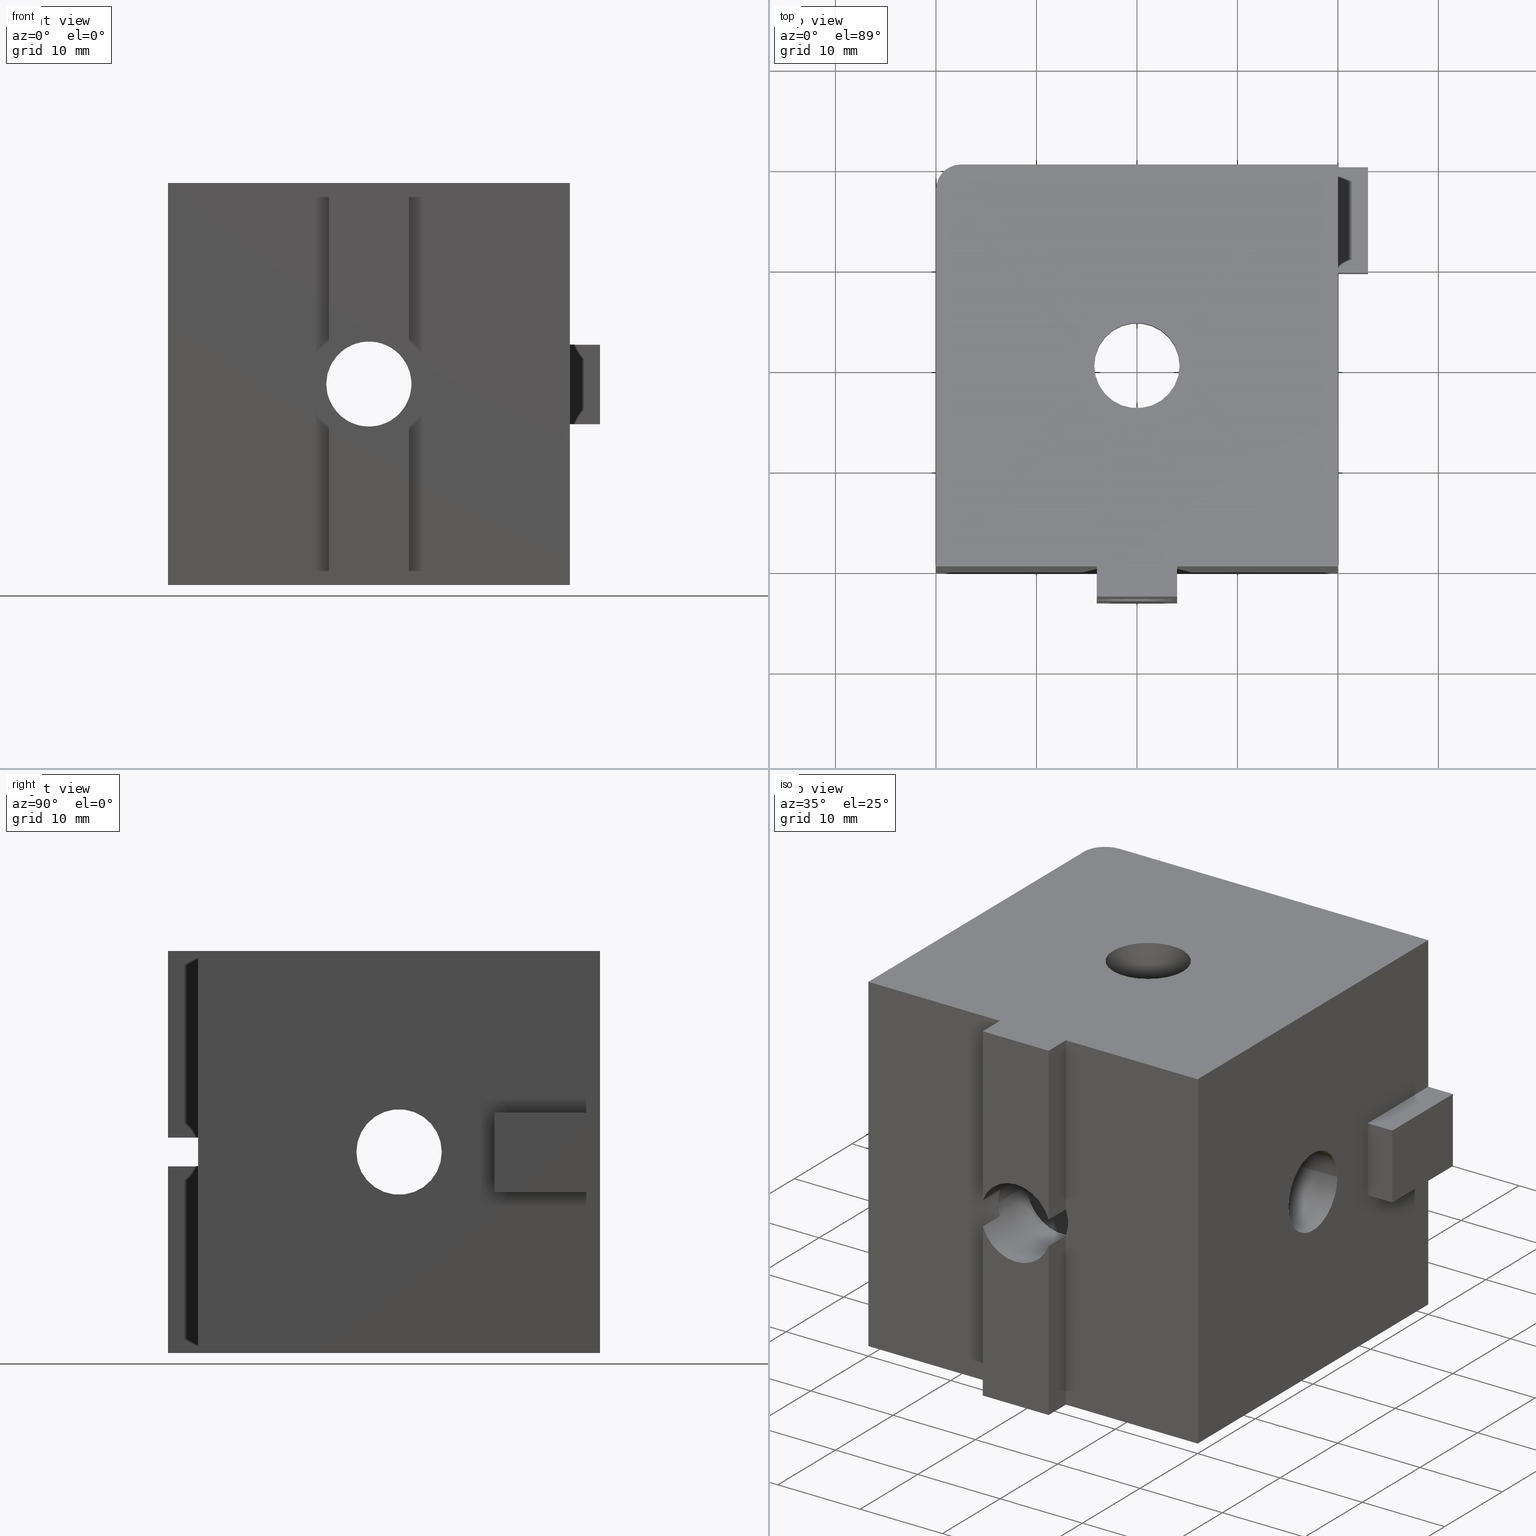
[diagram: canonical four-view strip — front | top / right | iso, engineering-drawing reading convention]
A machine part, canonical four-view strip (front | top / right | iso — engineering-drawing reading convention). The complete STEP part file that produces these views, byte-faithful:
ISO-10303-21;
HEADER;
/****************************************************************
 * Generated by software with PDE/Lib inside                    *
 * PDElib Version v4.4, created Mon 02/23/2004                  *
 * International Technegroup Inc. (www.iti-oh.com)              *
 ****************************************************************/
FILE_DESCRIPTION(('STEP AP203'),'2;1');
FILE_NAME('14.154.00.stp','2011-03-21T15:47:11',(''),(''),'2009.3.110','THINKDESIGN','');
FILE_SCHEMA(('CONFIG_CONTROL_DESIGN'));
ENDSEC;
DATA;
#2=CARTESIAN_POINT('',(-19.999995559920137,-20.000000000000057,0.0));
#3=DIRECTION('',(0.0,-1.0,0.0));
#4=DIRECTION('',(1.0,0.0,0.0));
#5=AXIS2_PLACEMENT_3D('',#2,#3,#4);
#6=PLANE('',#5);
#7=CARTESIAN_POINT('',(-19.999995559920137,-20.000000000000057,0.0));
#8=VERTEX_POINT('',#7);
#9=CARTESIAN_POINT('',(-3.999999111984067,-20.0,0.0));
#10=VERTEX_POINT('',#9);
#11=CARTESIAN_POINT('',(-19.999995559920137,-20.000000000000057,0.0));
#12=DIRECTION('',(1.0,0.0,0.0));
#13=VECTOR('',#12,15.999996447936070);
#14=LINE('',#11,#13);
#15=EDGE_CURVE('',#8,#10,#14,.T.);
#16=ORIENTED_EDGE('',*,*,#15,.T.);
#17=CARTESIAN_POINT('',(-3.999999111984067,-20.0,18.563855217114725));
#18=VERTEX_POINT('',#17);
#19=CARTESIAN_POINT('',(-3.999999111984067,-20.0,0.0));
#20=DIRECTION('',(0.0,0.0,1.0));
#21=VECTOR('',#20,18.563855217114725);
#22=LINE('',#19,#21);
#23=EDGE_CURVE('',#10,#18,#22,.T.);
#24=ORIENTED_EDGE('',*,*,#23,.T.);
#25=CARTESIAN_POINT('',(-4.249999056483006,-20.000000000000057,19.999995559920080));
#26=VERTEX_POINT('',#25);
#27=CARTESIAN_POINT('',(0.0,-20.000000000000057,19.999995559920080));
#28=DIRECTION('',(0.0,1.0,0.0));
#29=DIRECTION('',(-1.0,0.0,0.0));
#30=AXIS2_PLACEMENT_3D('',#27,#28,#29);
#31=CIRCLE('',#30,4.249999056483006);
#32=EDGE_CURVE('',#18,#26,#31,.T.);
#33=ORIENTED_EDGE('',*,*,#32,.T.);
#34=CARTESIAN_POINT('',(-3.999999111984067,-20.0,21.436135902725436));
#35=VERTEX_POINT('',#34);
#36=CARTESIAN_POINT('',(0.0,-20.000000000000057,19.999995559920080));
#37=DIRECTION('',(0.0,1.0,0.0));
#38=DIRECTION('',(-1.0,0.0,0.0));
#39=AXIS2_PLACEMENT_3D('',#36,#37,#38);
#40=CIRCLE('',#39,4.249999056483006);
#41=EDGE_CURVE('',#26,#35,#40,.T.);
#42=ORIENTED_EDGE('',*,*,#41,.T.);
#43=CARTESIAN_POINT('',(-3.999999111984067,-20.0,39.999989209840351));
#44=VERTEX_POINT('',#43);
#45=CARTESIAN_POINT('',(-3.999999111984067,-20.0,21.436135902725436));
#46=DIRECTION('',(0.0,0.0,1.0));
#47=VECTOR('',#46,18.563853307114915);
#48=LINE('',#45,#47);
#49=EDGE_CURVE('',#35,#44,#48,.T.);
#50=ORIENTED_EDGE('',*,*,#49,.T.);
#51=CARTESIAN_POINT('',(-19.999995559920137,-20.000000000000057,39.999989209840351));
#52=VERTEX_POINT('',#51);
#53=CARTESIAN_POINT('',(-19.999995559920137,-20.000000000000057,39.999989209840351));
#54=DIRECTION('',(1.0,0.0,0.0));
#55=VECTOR('',#54,15.999996447936070);
#56=LINE('',#53,#55);
#57=EDGE_CURVE('',#52,#44,#56,.T.);
#58=ORIENTED_EDGE('',*,*,#57,.F.);
#59=CARTESIAN_POINT('',(-19.999995559920137,-20.000000000000057,0.0));
#60=DIRECTION('',(0.0,0.0,1.0));
#61=VECTOR('',#60,39.999989209840351);
#62=LINE('',#59,#61);
#63=EDGE_CURVE('',#8,#52,#62,.T.);
#64=ORIENTED_EDGE('',*,*,#63,.F.);
#65=EDGE_LOOP('',(#16,#24,#33,#42,#50,#58,#64));
#66=FACE_OUTER_BOUND('',#65,.T.);
#67=ADVANCED_FACE('',(#66),#6,.T.);
#68=CARTESIAN_POINT('',(-3.999999111984067,-20.0,0.0));
#69=DIRECTION('',(-1.0,0.0,0.0));
#70=DIRECTION('',(0.0,-1.0,0.0));
#71=AXIS2_PLACEMENT_3D('',#68,#69,#70);
#72=PLANE('',#71);
#73=CARTESIAN_POINT('',(-3.999999111984067,-22.999999333988058,0.0));
#74=VERTEX_POINT('',#73);
#75=CARTESIAN_POINT('',(-3.999999111984067,-20.0,0.0));
#76=DIRECTION('',(0.0,-1.0,0.0));
#77=VECTOR('',#76,2.999999333988058);
#78=LINE('',#75,#77);
#79=EDGE_CURVE('',#10,#74,#78,.T.);
#80=ORIENTED_EDGE('',*,*,#79,.T.);
#81=CARTESIAN_POINT('',(-3.999999111984067,-22.999999333988058,18.563855217114725));
#82=VERTEX_POINT('',#81);
#83=CARTESIAN_POINT('',(-3.999999111984067,-22.999999333988058,0.0));
#84=DIRECTION('',(0.0,0.0,1.0));
#85=VECTOR('',#84,18.563855217114725);
#86=LINE('',#83,#85);
#87=EDGE_CURVE('',#74,#82,#86,.T.);
#88=ORIENTED_EDGE('',*,*,#87,.T.);
#89=CARTESIAN_POINT('',(-3.999999111984067,-22.999999333988058,18.563855217114714));
#90=DIRECTION('',(0.0,1.0,0.0));
#91=VECTOR('',#90,2.999999333988058);
#92=LINE('',#89,#91);
#93=EDGE_CURVE('',#82,#18,#92,.T.);
#94=ORIENTED_EDGE('',*,*,#93,.T.);
#95=ORIENTED_EDGE('',*,*,#23,.F.);
#96=EDGE_LOOP('',(#80,#88,#94,#95));
#97=FACE_OUTER_BOUND('',#96,.T.);
#98=ADVANCED_FACE('',(#97),#72,.T.);
#99=CARTESIAN_POINT('',(-3.999999111984067,-20.0,0.0));
#100=DIRECTION('',(-1.0,0.0,0.0));
#101=DIRECTION('',(0.0,-1.0,0.0));
#102=AXIS2_PLACEMENT_3D('',#99,#100,#101);
#103=PLANE('',#102);
#104=ORIENTED_EDGE('',*,*,#49,.F.);
#105=CARTESIAN_POINT('',(-3.999999111984067,-22.999999333988058,21.436135902725436));
#106=VERTEX_POINT('',#105);
#107=CARTESIAN_POINT('',(-3.999999111984067,-20.0,21.436135902725447));
#108=DIRECTION('',(0.0,-1.0,0.0));
#109=VECTOR('',#108,2.999999333988058);
#110=LINE('',#107,#109);
#111=EDGE_CURVE('',#35,#106,#110,.T.);
#112=ORIENTED_EDGE('',*,*,#111,.T.);
#113=CARTESIAN_POINT('',(-3.999999111984067,-22.999999333988058,39.999989209840351));
#114=VERTEX_POINT('',#113);
#115=CARTESIAN_POINT('',(-3.999999111984067,-22.999999333988058,21.436135902725436));
#116=DIRECTION('',(0.0,0.0,1.0));
#117=VECTOR('',#116,18.563853307114915);
#118=LINE('',#115,#117);
#119=EDGE_CURVE('',#106,#114,#118,.T.);
#120=ORIENTED_EDGE('',*,*,#119,.T.);
#121=CARTESIAN_POINT('',(-3.999999111984067,-20.0,39.999989209840351));
#122=DIRECTION('',(0.0,-1.0,0.0));
#123=VECTOR('',#122,2.999999333988058);
#124=LINE('',#121,#123);
#125=EDGE_CURVE('',#44,#114,#124,.T.);
#126=ORIENTED_EDGE('',*,*,#125,.F.);
#127=EDGE_LOOP('',(#104,#112,#120,#126));
#128=FACE_OUTER_BOUND('',#127,.T.);
#129=ADVANCED_FACE('',(#128),#103,.T.);
#130=CARTESIAN_POINT('',(-3.999999111984067,-22.999999333988058,0.0));
#131=DIRECTION('',(0.0,-1.0,0.0));
#132=DIRECTION('',(1.0,0.0,0.0));
#133=AXIS2_PLACEMENT_3D('',#130,#131,#132);
#134=PLANE('',#133);
#135=CARTESIAN_POINT('',(3.999999111983840,-22.999999333988058,0.0));
#136=VERTEX_POINT('',#135);
#137=CARTESIAN_POINT('',(-3.999999111984067,-22.999999333988058,0.0));
#138=DIRECTION('',(1.0,0.0,0.0));
#139=VECTOR('',#138,7.999998223967907);
#140=LINE('',#137,#139);
#141=EDGE_CURVE('',#74,#136,#140,.T.);
#142=ORIENTED_EDGE('',*,*,#141,.T.);
#143=CARTESIAN_POINT('',(3.999999111983840,-22.999999333988058,18.563855217114092));
#144=VERTEX_POINT('',#143);
#145=CARTESIAN_POINT('',(3.999999111983840,-22.999999333988058,0.0));
#146=DIRECTION('',(0.0,0.0,1.0));
#147=VECTOR('',#146,18.563855217114092);
#148=LINE('',#145,#147);
#149=EDGE_CURVE('',#136,#144,#148,.T.);
#150=ORIENTED_EDGE('',*,*,#149,.T.);
#151=CARTESIAN_POINT('',(0.0,-22.999999333988058,19.999995559920080));
#152=DIRECTION('',(0.0,1.0,0.0));
#153=DIRECTION('',(-1.0,0.0,0.0));
#154=AXIS2_PLACEMENT_3D('',#151,#152,#153);
#155=CIRCLE('',#154,4.249999056483006);
#156=EDGE_CURVE('',#144,#82,#155,.T.);
#157=ORIENTED_EDGE('',*,*,#156,.T.);
#158=ORIENTED_EDGE('',*,*,#87,.F.);
#159=EDGE_LOOP('',(#142,#150,#157,#158));
#160=FACE_OUTER_BOUND('',#159,.T.);
#161=ADVANCED_FACE('',(#160),#134,.T.);
#162=CARTESIAN_POINT('',(-3.999999111984067,-22.999999333988058,0.0));
#163=DIRECTION('',(0.0,-1.0,0.0));
#164=DIRECTION('',(1.0,0.0,0.0));
#165=AXIS2_PLACEMENT_3D('',#162,#163,#164);
#166=PLANE('',#165);
#167=ORIENTED_EDGE('',*,*,#119,.F.);
#168=CARTESIAN_POINT('',(3.999999111983840,-22.999999333988058,21.436135902726068));
#169=VERTEX_POINT('',#168);
#170=CARTESIAN_POINT('',(0.0,-22.999999333988058,19.999995559920080));
#171=DIRECTION('',(0.0,1.0,0.0));
#172=DIRECTION('',(-1.0,0.0,0.0));
#173=AXIS2_PLACEMENT_3D('',#170,#171,#172);
#174=CIRCLE('',#173,4.249999056483006);
#175=EDGE_CURVE('',#106,#169,#174,.T.);
#176=ORIENTED_EDGE('',*,*,#175,.T.);
#177=CARTESIAN_POINT('',(3.999999111983840,-22.999999333988058,39.999989209840351));
#178=VERTEX_POINT('',#177);
#179=CARTESIAN_POINT('',(3.999999111983840,-22.999999333988058,21.436135902726068));
#180=DIRECTION('',(0.0,0.0,1.0));
#181=VECTOR('',#180,18.563853307114282);
#182=LINE('',#179,#181);
#183=EDGE_CURVE('',#169,#178,#182,.T.);
#184=ORIENTED_EDGE('',*,*,#183,.T.);
#185=CARTESIAN_POINT('',(-3.999999111984067,-22.999999333988058,39.999989209840351));
#186=DIRECTION('',(1.0,0.0,0.0));
#187=VECTOR('',#186,7.999998223967907);
#188=LINE('',#185,#187);
#189=EDGE_CURVE('',#114,#178,#188,.T.);
#190=ORIENTED_EDGE('',*,*,#189,.F.);
#191=EDGE_LOOP('',(#167,#176,#184,#190));
#192=FACE_OUTER_BOUND('',#191,.T.);
#193=ADVANCED_FACE('',(#192),#166,.T.);
#194=CARTESIAN_POINT('',(3.999999111983840,-22.999999333988058,0.0));
#195=DIRECTION('',(1.0,0.0,0.0));
#196=DIRECTION('',(0.0,1.0,0.0));
#197=AXIS2_PLACEMENT_3D('',#194,#195,#196);
#198=PLANE('',#197);
#199=CARTESIAN_POINT('',(3.999999111983840,-20.000000000000057,0.0));
#200=VERTEX_POINT('',#199);
#201=CARTESIAN_POINT('',(3.999999111983840,-22.999999333988058,0.0));
#202=DIRECTION('',(0.0,1.0,0.0));
#203=VECTOR('',#202,2.999999333988001);
#204=LINE('',#201,#203);
#205=EDGE_CURVE('',#136,#200,#204,.T.);
#206=ORIENTED_EDGE('',*,*,#205,.T.);
#207=CARTESIAN_POINT('',(3.999999111983840,-20.000000000000057,18.563855217114092));
#208=VERTEX_POINT('',#207);
#209=CARTESIAN_POINT('',(3.999999111983840,-20.000000000000057,0.0));
#210=DIRECTION('',(0.0,0.0,1.0));
#211=VECTOR('',#210,18.563855217114092);
#212=LINE('',#209,#211);
#213=EDGE_CURVE('',#200,#208,#212,.T.);
#214=ORIENTED_EDGE('',*,*,#213,.T.);
#215=CARTESIAN_POINT('',(3.999999111983840,-20.000000000000057,18.563855217114082));
#216=DIRECTION('',(0.0,-1.0,0.0));
#217=VECTOR('',#216,2.999999333988001);
#218=LINE('',#215,#217);
#219=EDGE_CURVE('',#208,#144,#218,.T.);
#220=ORIENTED_EDGE('',*,*,#219,.T.);
#221=ORIENTED_EDGE('',*,*,#149,.F.);
#222=EDGE_LOOP('',(#206,#214,#220,#221));
#223=FACE_OUTER_BOUND('',#222,.T.);
#224=ADVANCED_FACE('',(#223),#198,.T.);
#225=CARTESIAN_POINT('',(3.999999111983840,-22.999999333988058,0.0));
#226=DIRECTION('',(1.0,0.0,0.0));
#227=DIRECTION('',(0.0,1.0,0.0));
#228=AXIS2_PLACEMENT_3D('',#225,#226,#227);
#229=PLANE('',#228);
#230=ORIENTED_EDGE('',*,*,#183,.F.);
#231=CARTESIAN_POINT('',(3.999999111983840,-20.000000000000057,21.436135902726068));
#232=VERTEX_POINT('',#231);
#233=CARTESIAN_POINT('',(3.999999111983840,-22.999999333988058,21.436135902726079));
#234=DIRECTION('',(0.0,1.0,0.0));
#235=VECTOR('',#234,2.999999333988001);
#236=LINE('',#233,#235);
#237=EDGE_CURVE('',#169,#232,#236,.T.);
#238=ORIENTED_EDGE('',*,*,#237,.T.);
#239=CARTESIAN_POINT('',(3.999999111983840,-20.000000000000057,39.999989209840351));
#240=VERTEX_POINT('',#239);
#241=CARTESIAN_POINT('',(3.999999111983840,-20.000000000000057,21.436135902726068));
#242=DIRECTION('',(0.0,0.0,1.0));
#243=VECTOR('',#242,18.563853307114282);
#244=LINE('',#241,#243);
#245=EDGE_CURVE('',#232,#240,#244,.T.);
#246=ORIENTED_EDGE('',*,*,#245,.T.);
#247=CARTESIAN_POINT('',(3.999999111983840,-22.999999333988058,39.999989209840351));
#248=DIRECTION('',(0.0,1.0,0.0));
#249=VECTOR('',#248,2.999999333988001);
#250=LINE('',#247,#249);
#251=EDGE_CURVE('',#178,#240,#250,.T.);
#252=ORIENTED_EDGE('',*,*,#251,.F.);
#253=EDGE_LOOP('',(#230,#238,#246,#252));
#254=FACE_OUTER_BOUND('',#253,.T.);
#255=ADVANCED_FACE('',(#254),#229,.T.);
#256=CARTESIAN_POINT('',(3.999999111983840,-20.000000000000057,0.0));
#257=DIRECTION('',(0.0,-1.0,0.0));
#258=DIRECTION('',(1.0,0.0,0.0));
#259=AXIS2_PLACEMENT_3D('',#256,#257,#258);
#260=PLANE('',#259);
#261=CARTESIAN_POINT('',(0.0,-20.000000000000057,19.999995559920080));
#262=DIRECTION('',(0.0,1.0,0.0));
#263=DIRECTION('',(-1.0,0.0,0.0));
#264=AXIS2_PLACEMENT_3D('',#261,#262,#263);
#265=CIRCLE('',#264,4.249999056483006);
#266=EDGE_CURVE('',#232,#208,#265,.T.);
#267=ORIENTED_EDGE('',*,*,#266,.T.);
#268=ORIENTED_EDGE('',*,*,#213,.F.);
#269=CARTESIAN_POINT('',(19.999993649920242,-20.000000000000057,0.0));
#270=VERTEX_POINT('',#269);
#271=CARTESIAN_POINT('',(3.999999111983840,-20.000000000000057,0.0));
#272=DIRECTION('',(1.0,0.0,0.0));
#273=VECTOR('',#272,15.999994537936402);
#274=LINE('',#271,#273);
#275=EDGE_CURVE('',#200,#270,#274,.T.);
#276=ORIENTED_EDGE('',*,*,#275,.T.);
#277=CARTESIAN_POINT('',(19.999993649920242,-20.000000000000057,39.999989209840351));
#278=VERTEX_POINT('',#277);
#279=CARTESIAN_POINT('',(19.999993649920242,-20.000000000000057,0.0));
#280=DIRECTION('',(0.0,0.0,1.0));
#281=VECTOR('',#280,39.999989209840351);
#282=LINE('',#279,#281);
#283=EDGE_CURVE('',#270,#278,#282,.T.);
#284=ORIENTED_EDGE('',*,*,#283,.T.);
#285=CARTESIAN_POINT('',(3.999999111983840,-20.000000000000057,39.999989209840351));
#286=DIRECTION('',(1.0,0.0,0.0));
#287=VECTOR('',#286,15.999994537936402);
#288=LINE('',#285,#287);
#289=EDGE_CURVE('',#240,#278,#288,.T.);
#290=ORIENTED_EDGE('',*,*,#289,.F.);
#291=ORIENTED_EDGE('',*,*,#245,.F.);
#292=EDGE_LOOP('',(#267,#268,#276,#284,#290,#291));
#293=FACE_OUTER_BOUND('',#292,.T.);
#294=ADVANCED_FACE('',(#293),#260,.T.);
#295=CARTESIAN_POINT('',(19.999993649920270,9.499993450882130,0.0));
#296=DIRECTION('',(0.0,-1.0,0.0));
#297=DIRECTION('',(1.0,0.0,0.0));
#298=AXIS2_PLACEMENT_3D('',#295,#296,#297);
#299=PLANE('',#298);
#300=CARTESIAN_POINT('',(19.999993649920270,9.499993450882130,15.999996447936155));
#301=VERTEX_POINT('',#300);
#302=CARTESIAN_POINT('',(19.999993649920270,9.499993450882130,23.902821791854763));
#303=VERTEX_POINT('',#302);
#304=CARTESIAN_POINT('',(19.999993649920270,9.499993450882130,15.999996447936155));
#305=DIRECTION('',(0.0,0.0,1.0));
#306=VECTOR('',#305,7.902825343918607);
#307=LINE('',#304,#306);
#308=EDGE_CURVE('',#301,#303,#307,.T.);
#309=ORIENTED_EDGE('',*,*,#308,.F.);
#310=CARTESIAN_POINT('',(22.999992983908470,9.499993450882130,15.999996447936155));
#311=VERTEX_POINT('',#310);
#312=CARTESIAN_POINT('',(19.999993649920270,9.499993450882130,15.999996447936155));
#313=DIRECTION('',(1.0,0.0,0.0));
#314=VECTOR('',#313,2.999999333988200);
#315=LINE('',#312,#314);
#316=EDGE_CURVE('',#301,#311,#315,.T.);
#317=ORIENTED_EDGE('',*,*,#316,.T.);
#318=CARTESIAN_POINT('',(22.999992983908470,9.499993450882130,23.902821791854763));
#319=VERTEX_POINT('',#318);
#320=CARTESIAN_POINT('',(22.999992983908470,9.499993450882130,15.999996447936155));
#321=DIRECTION('',(0.0,0.0,1.0));
#322=VECTOR('',#321,7.902825343918607);
#323=LINE('',#320,#322);
#324=EDGE_CURVE('',#311,#319,#323,.T.);
#325=ORIENTED_EDGE('',*,*,#324,.T.);
#326=CARTESIAN_POINT('',(19.999993649920270,9.499993450882130,23.902821791854763));
#327=DIRECTION('',(1.0,0.0,0.0));
#328=VECTOR('',#327,2.999999333988200);
#329=LINE('',#326,#328);
#330=EDGE_CURVE('',#303,#319,#329,.T.);
#331=ORIENTED_EDGE('',*,*,#330,.F.);
#332=EDGE_LOOP('',(#309,#317,#325,#331));
#333=FACE_OUTER_BOUND('',#332,.T.);
#334=ADVANCED_FACE('',(#333),#299,.T.);
#335=CARTESIAN_POINT('',(22.999992983908470,9.499993450882130,0.0));
#336=DIRECTION('',(1.0,0.0,0.0));
#337=DIRECTION('',(0.0,1.0,0.0));
#338=AXIS2_PLACEMENT_3D('',#335,#336,#337);
#339=PLANE('',#338);
#340=CARTESIAN_POINT('',(22.999992983908470,19.999991119839819,15.999996447936155));
#341=VERTEX_POINT('',#340);
#342=CARTESIAN_POINT('',(22.999992983908470,9.499993450882130,15.999996447936155));
#343=DIRECTION('',(0.0,1.0,0.0));
#344=VECTOR('',#343,10.499997668957690);
#345=LINE('',#342,#344);
#346=EDGE_CURVE('',#311,#341,#345,.T.);
#347=ORIENTED_EDGE('',*,*,#346,.T.);
#348=CARTESIAN_POINT('',(22.999992983908470,19.999991119839819,23.902821791854763));
#349=VERTEX_POINT('',#348);
#350=CARTESIAN_POINT('',(22.999992983908470,19.999991119839819,15.999996447936155));
#351=DIRECTION('',(0.0,0.0,1.0));
#352=VECTOR('',#351,7.902825343918607);
#353=LINE('',#350,#352);
#354=EDGE_CURVE('',#341,#349,#353,.T.);
#355=ORIENTED_EDGE('',*,*,#354,.T.);
#356=CARTESIAN_POINT('',(22.999992983908470,9.499993450882130,23.902821791854763));
#357=DIRECTION('',(0.0,1.0,0.0));
#358=VECTOR('',#357,10.499997668957690);
#359=LINE('',#356,#358);
#360=EDGE_CURVE('',#319,#349,#359,.T.);
#361=ORIENTED_EDGE('',*,*,#360,.F.);
#362=ORIENTED_EDGE('',*,*,#324,.F.);
#363=EDGE_LOOP('',(#347,#355,#361,#362));
#364=FACE_OUTER_BOUND('',#363,.T.);
#365=ADVANCED_FACE('',(#364),#339,.T.);
#366=CARTESIAN_POINT('',(22.999992983908470,19.999991119839819,0.0));
#367=DIRECTION('',(0.0,1.0,0.0));
#368=DIRECTION('',(-1.0,0.0,0.0));
#369=AXIS2_PLACEMENT_3D('',#366,#367,#368);
#370=PLANE('',#369);
#371=CARTESIAN_POINT('',(-17.499996114930269,19.999991119839819,0.0));
#372=VERTEX_POINT('',#371);
#373=CARTESIAN_POINT('',(-17.499996114930269,19.999991119839819,39.999989209840351));
#374=VERTEX_POINT('',#373);
#375=CARTESIAN_POINT('',(-17.499996114930269,19.999991119839819,0.0));
#376=DIRECTION('',(0.0,0.0,1.0));
#377=VECTOR('',#376,39.999989209840351);
#378=LINE('',#375,#377);
#379=EDGE_CURVE('',#372,#374,#378,.T.);
#380=ORIENTED_EDGE('',*,*,#379,.T.);
#381=CARTESIAN_POINT('',(19.999993649920242,19.999991119839819,39.999989209840351));
#382=VERTEX_POINT('',#381);
#383=CARTESIAN_POINT('',(19.999993649920242,19.999991119839819,39.999989209840351));
#384=DIRECTION('',(-1.0,0.0,0.0));
#385=VECTOR('',#384,37.499989764850511);
#386=LINE('',#383,#385);
#387=EDGE_CURVE('',#382,#374,#386,.T.);
#388=ORIENTED_EDGE('',*,*,#387,.F.);
#389=CARTESIAN_POINT('',(19.999993649920242,19.999991119839819,23.902821791854763));
#390=VERTEX_POINT('',#389);
#391=CARTESIAN_POINT('',(19.999993649920242,19.999991119839819,39.999989209840351));
#392=DIRECTION('',(0.0,0.0,-1.0));
#393=VECTOR('',#392,16.097167417985588);
#394=LINE('',#391,#393);
#395=EDGE_CURVE('',#382,#390,#394,.T.);
#396=ORIENTED_EDGE('',*,*,#395,.T.);
#397=CARTESIAN_POINT('',(22.999992983908470,19.999991119839819,23.902821791854763));
#398=DIRECTION('',(-1.0,0.0,0.0));
#399=VECTOR('',#398,2.999999333988228);
#400=LINE('',#397,#399);
#401=EDGE_CURVE('',#349,#390,#400,.T.);
#402=ORIENTED_EDGE('',*,*,#401,.F.);
#403=ORIENTED_EDGE('',*,*,#354,.F.);
#404=CARTESIAN_POINT('',(19.999993649920413,19.999991119839819,15.999996447936155));
#405=VERTEX_POINT('',#404);
#406=CARTESIAN_POINT('',(22.999992983908470,19.999991119839819,15.999996447936155));
#407=DIRECTION('',(-1.0,0.0,0.0));
#408=VECTOR('',#407,2.999999333988058);
#409=LINE('',#406,#408);
#410=EDGE_CURVE('',#341,#405,#409,.T.);
#411=ORIENTED_EDGE('',*,*,#410,.T.);
#412=CARTESIAN_POINT('',(19.999993649920413,19.999991119839819,0.0));
#413=VERTEX_POINT('',#412);
#414=CARTESIAN_POINT('',(19.999993649920413,19.999991119839819,0.0));
#415=DIRECTION('',(0.0,0.0,1.0));
#416=VECTOR('',#415,15.999996447936155);
#417=LINE('',#414,#416);
#418=EDGE_CURVE('',#413,#405,#417,.T.);
#419=ORIENTED_EDGE('',*,*,#418,.F.);
#420=CARTESIAN_POINT('',(19.999993649920413,19.999991119839819,0.0));
#421=DIRECTION('',(-1.0,0.0,0.0));
#422=VECTOR('',#421,37.499989764850682);
#423=LINE('',#420,#422);
#424=EDGE_CURVE('',#413,#372,#423,.T.);
#425=ORIENTED_EDGE('',*,*,#424,.T.);
#426=EDGE_LOOP('',(#380,#388,#396,#402,#403,#411,#419,#425));
#427=FACE_OUTER_BOUND('',#426,.T.);
#428=CARTESIAN_POINT('',(6.999996535972450,19.999991119839819,19.999995559920080));
#429=VERTEX_POINT('',#428);
#430=CARTESIAN_POINT('',(-6.999996535972457,19.999991119839819,19.999995559920080));
#431=VERTEX_POINT('',#430);
#432=CARTESIAN_POINT('',(0.0,19.999991119839819,19.999995559920080));
#433=DIRECTION('',(0.0,1.0,0.0));
#434=DIRECTION('',(-1.0,0.0,0.0));
#435=AXIS2_PLACEMENT_3D('',#432,#433,#434);
#436=CIRCLE('',#435,6.999996535972450);
#437=EDGE_CURVE('',#429,#431,#436,.T.);
#438=ORIENTED_EDGE('',*,*,#437,.F.);
#439=CARTESIAN_POINT('',(0.0,19.999991119839819,19.999995559920080));
#440=DIRECTION('',(0.0,1.0,0.0));
#441=DIRECTION('',(-1.0,0.0,0.0));
#442=AXIS2_PLACEMENT_3D('',#439,#440,#441);
#443=CIRCLE('',#442,6.999996535972450);
#444=EDGE_CURVE('',#431,#429,#443,.T.);
#445=ORIENTED_EDGE('',*,*,#444,.F.);
#446=EDGE_LOOP('',(#438,#445));
#447=FACE_BOUND('',#446,.T.);
#448=ADVANCED_FACE('',(#427,#447),#370,.T.);
#449=CARTESIAN_POINT('',(-17.499996114930269,17.499991674849952,0.0));
#450=DIRECTION('',(0.0,0.0,1.0));
#451=DIRECTION('',(0.0,1.0,0.0));
#452=AXIS2_PLACEMENT_3D('',#449,#450,#451);
#453=CYLINDRICAL_SURFACE('',#452,2.499999444989868);
#454=CARTESIAN_POINT('',(-19.999995559920137,17.499991674849952,0.0));
#455=VERTEX_POINT('',#454);
#456=CARTESIAN_POINT('',(-17.499996114930269,17.499991674849952,0.0));
#457=DIRECTION('',(0.0,0.0,1.0));
#458=DIRECTION('',(0.0,1.0,0.0));
#459=AXIS2_PLACEMENT_3D('',#456,#457,#458);
#460=CIRCLE('',#459,2.499999444989868);
#461=EDGE_CURVE('',#372,#455,#460,.T.);
#462=ORIENTED_EDGE('',*,*,#461,.T.);
#463=CARTESIAN_POINT('',(-19.999995559920137,17.499991674849952,39.999989209840351));
#464=VERTEX_POINT('',#463);
#465=CARTESIAN_POINT('',(-19.999995559920137,17.499991674849952,0.0));
#466=DIRECTION('',(0.0,0.0,1.0));
#467=VECTOR('',#466,39.999989209840351);
#468=LINE('',#465,#467);
#469=EDGE_CURVE('',#455,#464,#468,.T.);
#470=ORIENTED_EDGE('',*,*,#469,.T.);
#471=CARTESIAN_POINT('',(-17.499996114930269,17.499991674849952,39.999989209840351));
#472=DIRECTION('',(0.0,0.0,1.0));
#473=DIRECTION('',(0.0,1.0,0.0));
#474=AXIS2_PLACEMENT_3D('',#471,#472,#473);
#475=CIRCLE('',#474,2.499999444989868);
#476=EDGE_CURVE('',#374,#464,#475,.T.);
#477=ORIENTED_EDGE('',*,*,#476,.F.);
#478=ORIENTED_EDGE('',*,*,#379,.F.);
#479=EDGE_LOOP('',(#462,#470,#477,#478));
#480=FACE_OUTER_BOUND('',#479,.T.);
#481=ADVANCED_FACE('',(#480),#453,.T.);
#482=CARTESIAN_POINT('',(-19.999995559920137,17.499991674849952,0.0));
#483=DIRECTION('',(-1.0,0.0,0.0));
#484=DIRECTION('',(0.0,-1.0,0.0));
#485=AXIS2_PLACEMENT_3D('',#482,#483,#484);
#486=PLANE('',#485);
#487=ORIENTED_EDGE('',*,*,#63,.T.);
#488=CARTESIAN_POINT('',(-19.999995559920137,17.499991674849952,39.999989209840351));
#489=DIRECTION('',(0.0,-1.0,0.0));
#490=VECTOR('',#489,37.499991674850008);
#491=LINE('',#488,#490);
#492=EDGE_CURVE('',#464,#52,#491,.T.);
#493=ORIENTED_EDGE('',*,*,#492,.F.);
#494=ORIENTED_EDGE('',*,*,#469,.F.);
#495=CARTESIAN_POINT('',(-19.999995559920137,17.499991674849952,0.0));
#496=DIRECTION('',(0.0,-1.0,0.0));
#497=VECTOR('',#496,37.499991674850008);
#498=LINE('',#495,#497);
#499=EDGE_CURVE('',#455,#8,#498,.T.);
#500=ORIENTED_EDGE('',*,*,#499,.T.);
#501=EDGE_LOOP('',(#487,#493,#494,#500));
#502=FACE_OUTER_BOUND('',#501,.T.);
#503=CARTESIAN_POINT('',(-19.999995559920137,6.999996535972421,19.999995559920002));
#504=VERTEX_POINT('',#503);
#505=CARTESIAN_POINT('',(-19.999995559920137,-6.999996535972485,19.999995559920002));
#506=VERTEX_POINT('',#505);
#507=CARTESIAN_POINT('',(-19.999995559920137,-2.842171E-014,19.999995559920002));
#508=DIRECTION('',(-1.0,0.0,0.0));
#509=DIRECTION('',(0.0,-1.0,0.0));
#510=AXIS2_PLACEMENT_3D('',#507,#508,#509);
#511=CIRCLE('',#510,6.999996535972450);
#512=EDGE_CURVE('',#504,#506,#511,.T.);
#513=ORIENTED_EDGE('',*,*,#512,.F.);
#514=CARTESIAN_POINT('',(-19.999995559920137,-2.842171E-014,19.999995559920002));
#515=DIRECTION('',(-1.0,0.0,0.0));
#516=DIRECTION('',(0.0,-1.0,0.0));
#517=AXIS2_PLACEMENT_3D('',#514,#515,#516);
#518=CIRCLE('',#517,6.999996535972450);
#519=EDGE_CURVE('',#506,#504,#518,.T.);
#520=ORIENTED_EDGE('',*,*,#519,.F.);
#521=EDGE_LOOP('',(#513,#520));
#522=FACE_BOUND('',#521,.T.);
#523=ADVANCED_FACE('',(#502,#522),#486,.T.);
#524=CARTESIAN_POINT('',(-24.299999139155716,-27.300003104209154,0.0));
#525=DIRECTION('',(0.0,0.0,1.0));
#526=DIRECTION('',(1.0,0.0,0.0));
#527=AXIS2_PLACEMENT_3D('',#524,#525,#526);
#528=PLANE('',#527);
#529=ORIENTED_EDGE('',*,*,#499,.F.);
#530=ORIENTED_EDGE('',*,*,#461,.F.);
#531=ORIENTED_EDGE('',*,*,#424,.F.);
#532=CARTESIAN_POINT('',(19.999993649920242,-20.000000000000057,0.0));
#533=DIRECTION('',(0.0,1.0,0.0));
#534=VECTOR('',#533,39.999991119839876);
#535=LINE('',#532,#534);
#536=EDGE_CURVE('',#270,#413,#535,.T.);
#537=ORIENTED_EDGE('',*,*,#536,.F.);
#538=ORIENTED_EDGE('',*,*,#275,.F.);
#539=ORIENTED_EDGE('',*,*,#205,.F.);
#540=ORIENTED_EDGE('',*,*,#141,.F.);
#541=ORIENTED_EDGE('',*,*,#79,.F.);
#542=ORIENTED_EDGE('',*,*,#15,.F.);
#543=EDGE_LOOP('',(#529,#530,#531,#537,#538,#539,#540,#541,#542));
#544=FACE_OUTER_BOUND('',#543,.T.);
#545=CARTESIAN_POINT('',(-6.999996535972450,0.0,0.0));
#546=VERTEX_POINT('',#545);
#547=CARTESIAN_POINT('',(6.999996535972457,0.0,0.0));
#548=VERTEX_POINT('',#547);
#549=CARTESIAN_POINT('',(0.0,0.0,0.0));
#550=DIRECTION('',(0.0,0.0,-1.0));
#551=DIRECTION('',(1.0,0.0,0.0));
#552=AXIS2_PLACEMENT_3D('',#549,#550,#551);
#553=CIRCLE('',#552,6.999996535972450);
#554=EDGE_CURVE('',#546,#548,#553,.T.);
#555=ORIENTED_EDGE('',*,*,#554,.F.);
#556=CARTESIAN_POINT('',(0.0,0.0,0.0));
#557=DIRECTION('',(0.0,0.0,-1.0));
#558=DIRECTION('',(1.0,0.0,0.0));
#559=AXIS2_PLACEMENT_3D('',#556,#557,#558);
#560=CIRCLE('',#559,6.999996535972450);
#561=EDGE_CURVE('',#548,#546,#560,.T.);
#562=ORIENTED_EDGE('',*,*,#561,.F.);
#563=EDGE_LOOP('',(#555,#562));
#564=FACE_BOUND('',#563,.T.);
#565=ADVANCED_FACE('',(#544,#564),#528,.F.);
#566=CARTESIAN_POINT('',(-24.299999139155716,-27.300003104209154,39.999989209840351));
#567=DIRECTION('',(0.0,0.0,1.0));
#568=DIRECTION('',(1.0,0.0,0.0));
#569=AXIS2_PLACEMENT_3D('',#566,#567,#568);
#570=PLANE('',#569);
#571=ORIENTED_EDGE('',*,*,#57,.T.);
#572=ORIENTED_EDGE('',*,*,#125,.T.);
#573=ORIENTED_EDGE('',*,*,#189,.T.);
#574=ORIENTED_EDGE('',*,*,#251,.T.);
#575=ORIENTED_EDGE('',*,*,#289,.T.);
#576=CARTESIAN_POINT('',(19.999993649920242,-20.000000000000057,39.999989209840351));
#577=DIRECTION('',(0.0,1.0,0.0));
#578=VECTOR('',#577,39.999991119839876);
#579=LINE('',#576,#578);
#580=EDGE_CURVE('',#278,#382,#579,.T.);
#581=ORIENTED_EDGE('',*,*,#580,.T.);
#582=ORIENTED_EDGE('',*,*,#387,.T.);
#583=ORIENTED_EDGE('',*,*,#476,.T.);
#584=ORIENTED_EDGE('',*,*,#492,.T.);
#585=EDGE_LOOP('',(#571,#572,#573,#574,#575,#581,#582,#583,#584));
#586=FACE_OUTER_BOUND('',#585,.T.);
#587=CARTESIAN_POINT('',(4.249999056483006,0.0,39.999989209840351));
#588=VERTEX_POINT('',#587);
#589=CARTESIAN_POINT('',(-4.249999056483006,0.0,39.999989209840351));
#590=VERTEX_POINT('',#589);
#591=CARTESIAN_POINT('',(0.0,0.0,39.999989209840351));
#592=DIRECTION('',(0.0,0.0,-1.0));
#593=DIRECTION('',(1.0,0.0,0.0));
#594=AXIS2_PLACEMENT_3D('',#591,#592,#593);
#595=CIRCLE('',#594,4.249999056483006);
#596=EDGE_CURVE('',#588,#590,#595,.T.);
#597=ORIENTED_EDGE('',*,*,#596,.T.);
#598=CARTESIAN_POINT('',(0.0,0.0,39.999989209840351));
#599=DIRECTION('',(0.0,0.0,-1.0));
#600=DIRECTION('',(1.0,0.0,0.0));
#601=AXIS2_PLACEMENT_3D('',#598,#599,#600);
#602=CIRCLE('',#601,4.249999056483006);
#603=EDGE_CURVE('',#590,#588,#602,.T.);
#604=ORIENTED_EDGE('',*,*,#603,.T.);
#605=EDGE_LOOP('',(#597,#604));
#606=FACE_BOUND('',#605,.T.);
#607=ADVANCED_FACE('',(#586,#606),#570,.T.);
#608=CARTESIAN_POINT('',(0.0,19.999991119839819,19.999995559920080));
#609=DIRECTION('',(0.0,1.0,0.0));
#610=DIRECTION('',(-1.0,0.0,0.0));
#611=AXIS2_PLACEMENT_3D('',#608,#609,#610);
#612=CYLINDRICAL_SURFACE('',#611,4.249999056483006);
#613=ORIENTED_EDGE('',*,*,#219,.F.);
#614=ORIENTED_EDGE('',*,*,#266,.F.);
#615=ORIENTED_EDGE('',*,*,#237,.F.);
#616=ORIENTED_EDGE('',*,*,#175,.F.);
#617=ORIENTED_EDGE('',*,*,#111,.F.);
#618=ORIENTED_EDGE('',*,*,#41,.F.);
#619=CARTESIAN_POINT('',(-4.249999056483006,-15.000001110020150,19.999995559920080));
#620=VERTEX_POINT('',#619);
#621=CARTESIAN_POINT('',(-4.249999056483006,-15.000001110020150,19.999995559920080));
#622=DIRECTION('',(0.0,-1.0,0.0));
#623=VECTOR('',#622,4.999998889979906);
#624=LINE('',#621,#623);
#625=EDGE_CURVE('',#620,#26,#624,.T.);
#626=ORIENTED_EDGE('',*,*,#625,.F.);
#627=CARTESIAN_POINT('',(4.249999056483006,-15.000001110020150,19.999995559920080));
#628=VERTEX_POINT('',#627);
#629=CARTESIAN_POINT('',(0.0,-15.000001110020150,19.999995559920080));
#630=DIRECTION('',(0.0,1.0,0.0));
#631=DIRECTION('',(-1.0,0.0,0.0));
#632=AXIS2_PLACEMENT_3D('',#629,#630,#631);
#633=CIRCLE('',#632,4.249999056483006);
#634=EDGE_CURVE('',#620,#628,#633,.T.);
#635=ORIENTED_EDGE('',*,*,#634,.T.);
#636=CARTESIAN_POINT('',(0.0,-15.000001110020150,19.999995559920080));
#637=DIRECTION('',(0.0,1.0,0.0));
#638=DIRECTION('',(-1.0,0.0,0.0));
#639=AXIS2_PLACEMENT_3D('',#636,#637,#638);
#640=CIRCLE('',#639,4.249999056483006);
#641=EDGE_CURVE('',#628,#620,#640,.T.);
#642=ORIENTED_EDGE('',*,*,#641,.T.);
#643=ORIENTED_EDGE('',*,*,#625,.T.);
#644=ORIENTED_EDGE('',*,*,#32,.F.);
#645=ORIENTED_EDGE('',*,*,#93,.F.);
#646=ORIENTED_EDGE('',*,*,#156,.F.);
#647=EDGE_LOOP('',(#613,#614,#615,#616,#617,#618,#626,#635,#642,#643,#644,#645,#646));
#648=FACE_OUTER_BOUND('',#647,.T.);
#649=ADVANCED_FACE('',(#648),#612,.F.);
#650=CARTESIAN_POINT('',(19.999993649920270,-5.684342E-014,19.999995559920002));
#651=DIRECTION('',(1.0,-9.634480E-016,0.0));
#652=DIRECTION('',(9.634480E-016,1.0,0.0));
#653=AXIS2_PLACEMENT_3D('',#650,#651,#652);
#654=CYLINDRICAL_SURFACE('',#653,4.249999056483006);
#655=CARTESIAN_POINT('',(19.999993649920270,4.249999056482949,19.999995559920002));
#656=VERTEX_POINT('',#655);
#657=CARTESIAN_POINT('',(14.999996669939833,4.249999056482949,19.999995559920002));
#658=VERTEX_POINT('',#657);
#659=CARTESIAN_POINT('',(19.999993649920270,4.249999056482949,19.999995559920002));
#660=DIRECTION('',(-1.0,0.0,0.0));
#661=VECTOR('',#660,4.999996979980441);
#662=LINE('',#659,#661);
#663=EDGE_CURVE('',#656,#658,#662,.T.);
#664=ORIENTED_EDGE('',*,*,#663,.T.);
#665=CARTESIAN_POINT('',(14.999996669939829,-4.249999056483063,19.999995559920002));
#666=VERTEX_POINT('',#665);
#667=CARTESIAN_POINT('',(14.999996669939833,-5.684342E-014,19.999995559920002));
#668=DIRECTION('',(-1.0,9.634480E-016,0.0));
#669=DIRECTION('',(9.634480E-016,1.0,0.0));
#670=AXIS2_PLACEMENT_3D('',#667,#668,#669);
#671=CIRCLE('',#670,4.249999056483006);
#672=EDGE_CURVE('',#658,#666,#671,.T.);
#673=ORIENTED_EDGE('',*,*,#672,.T.);
#674=CARTESIAN_POINT('',(14.999996669939833,-5.684342E-014,19.999995559920002));
#675=DIRECTION('',(-1.0,9.634480E-016,0.0));
#676=DIRECTION('',(9.634480E-016,1.0,0.0));
#677=AXIS2_PLACEMENT_3D('',#674,#675,#676);
#678=CIRCLE('',#677,4.249999056483006);
#679=EDGE_CURVE('',#666,#658,#678,.T.);
#680=ORIENTED_EDGE('',*,*,#679,.T.);
#681=ORIENTED_EDGE('',*,*,#663,.F.);
#682=CARTESIAN_POINT('',(19.999993649920267,-4.249999056483063,19.999995559920002));
#683=VERTEX_POINT('',#682);
#684=CARTESIAN_POINT('',(19.999993649920270,-5.684342E-014,19.999995559920002));
#685=DIRECTION('',(-1.0,9.634480E-016,0.0));
#686=DIRECTION('',(9.634480E-016,1.0,0.0));
#687=AXIS2_PLACEMENT_3D('',#684,#685,#686);
#688=CIRCLE('',#687,4.249999056483006);
#689=EDGE_CURVE('',#683,#656,#688,.T.);
#690=ORIENTED_EDGE('',*,*,#689,.F.);
#691=CARTESIAN_POINT('',(19.999993649920270,-5.684342E-014,19.999995559920002));
#692=DIRECTION('',(-1.0,9.634480E-016,0.0));
#693=DIRECTION('',(9.634480E-016,1.0,0.0));
#694=AXIS2_PLACEMENT_3D('',#691,#692,#693);
#695=CIRCLE('',#694,4.249999056483006);
#696=EDGE_CURVE('',#656,#683,#695,.T.);
#697=ORIENTED_EDGE('',*,*,#696,.F.);
#698=EDGE_LOOP('',(#664,#673,#680,#681,#690,#697));
#699=FACE_OUTER_BOUND('',#698,.T.);
#700=ADVANCED_FACE('',(#699),#654,.F.);
#701=CARTESIAN_POINT('',(0.0,0.0,0.0));
#702=DIRECTION('',(0.0,0.0,-1.0));
#703=DIRECTION('',(1.0,0.0,0.0));
#704=AXIS2_PLACEMENT_3D('',#701,#702,#703);
#705=CYLINDRICAL_SURFACE('',#704,4.249999056483006);
#706=ORIENTED_EDGE('',*,*,#603,.F.);
#707=ORIENTED_EDGE('',*,*,#596,.F.);
#708=CARTESIAN_POINT('',(4.249999056483006,0.0,34.999992229859970));
#709=VERTEX_POINT('',#708);
#710=CARTESIAN_POINT('',(4.249999056483006,0.0,34.999992229859970));
#711=DIRECTION('',(0.0,0.0,1.0));
#712=VECTOR('',#711,4.999996979980381);
#713=LINE('',#710,#712);
#714=EDGE_CURVE('',#709,#588,#713,.T.);
#715=ORIENTED_EDGE('',*,*,#714,.F.);
#716=CARTESIAN_POINT('',(-4.249999056483006,0.0,34.999992229859970));
#717=VERTEX_POINT('',#716);
#718=CARTESIAN_POINT('',(0.0,0.0,34.999992229859970));
#719=DIRECTION('',(0.0,0.0,-1.0));
#720=DIRECTION('',(1.0,0.0,0.0));
#721=AXIS2_PLACEMENT_3D('',#718,#719,#720);
#722=CIRCLE('',#721,4.249999056483006);
#723=EDGE_CURVE('',#709,#717,#722,.T.);
#724=ORIENTED_EDGE('',*,*,#723,.T.);
#725=CARTESIAN_POINT('',(0.0,0.0,34.999992229859970));
#726=DIRECTION('',(0.0,0.0,-1.0));
#727=DIRECTION('',(1.0,0.0,0.0));
#728=AXIS2_PLACEMENT_3D('',#725,#726,#727);
#729=CIRCLE('',#728,4.249999056483006);
#730=EDGE_CURVE('',#717,#709,#729,.T.);
#731=ORIENTED_EDGE('',*,*,#730,.T.);
#732=ORIENTED_EDGE('',*,*,#714,.T.);
#733=EDGE_LOOP('',(#706,#707,#715,#724,#731,#732));
#734=FACE_OUTER_BOUND('',#733,.T.);
#735=ADVANCED_FACE('',(#734),#705,.F.);
#736=CARTESIAN_POINT('',(0.0,19.999991119839819,19.999995559920080));
#737=DIRECTION('',(0.0,1.0,0.0));
#738=DIRECTION('',(-1.0,0.0,0.0));
#739=AXIS2_PLACEMENT_3D('',#736,#737,#738);
#740=CYLINDRICAL_SURFACE('',#739,6.999996535972450);
#741=CARTESIAN_POINT('',(6.999996535972450,-15.000001110020150,19.999995559920080));
#742=VERTEX_POINT('',#741);
#743=CARTESIAN_POINT('',(-6.999996535972457,-15.000001110020150,19.999995559920080));
#744=VERTEX_POINT('',#743);
#745=CARTESIAN_POINT('',(0.0,-15.000001110020150,19.999995559920080));
#746=DIRECTION('',(0.0,1.0,0.0));
#747=DIRECTION('',(-1.0,0.0,0.0));
#748=AXIS2_PLACEMENT_3D('',#745,#746,#747);
#749=CIRCLE('',#748,6.999996535972450);
#750=EDGE_CURVE('',#742,#744,#749,.T.);
#751=ORIENTED_EDGE('',*,*,#750,.F.);
#752=CARTESIAN_POINT('',(0.0,-15.000001110020150,19.999995559920080));
#753=DIRECTION('',(0.0,1.0,0.0));
#754=DIRECTION('',(-1.0,0.0,0.0));
#755=AXIS2_PLACEMENT_3D('',#752,#753,#754);
#756=CIRCLE('',#755,6.999996535972450);
#757=EDGE_CURVE('',#744,#742,#756,.T.);
#758=ORIENTED_EDGE('',*,*,#757,.F.);
#759=CARTESIAN_POINT('',(-6.999996535972457,-6.999996535972485,19.999995559920080));
#760=VERTEX_POINT('',#759);
#761=CARTESIAN_POINT('',(-6.999996535972457,-6.999996535972493,19.999995559920080));
#762=DIRECTION('',(0.0,-1.0,0.0));
#763=VECTOR('',#762,8.000004574047658);
#764=LINE('',#761,#763);
#765=EDGE_CURVE('',#760,#744,#764,.T.);
#766=ORIENTED_EDGE('',*,*,#765,.F.);
#767=CARTESIAN_POINT('',(-4.949745018868470,-4.949745018868441,24.949740578788507));
#768=VERTEX_POINT('',#767);
#769=CARTESIAN_POINT('',(-6.999996535972457,-6.999996535972485,19.999995559920041));
#770=CARTESIAN_POINT('',(-6.999996535972457,-6.999996535972485,20.358045561525113));
#771=CARTESIAN_POINT('',(-6.936435114277572,-6.936435114896824,21.178464312150432));
#772=CARTESIAN_POINT('',(-6.619023660546986,-6.619023657670795,22.405528958580032));
#773=CARTESIAN_POINT('',(-6.053792332299906,-6.053792343384203,23.592288172859281));
#774=CARTESIAN_POINT('',(-5.459223393374236,-5.459223361560783,24.411242401168742));
#775=CARTESIAN_POINT('',(-5.069594504802174,-5.069594533267111,24.829903485438653));
#776=CARTESIAN_POINT('',(-4.949748911129372,-4.949748946664379,24.949748398889454));
#777=B_SPLINE_CURVE_WITH_KNOTS('',3,(#769,#770,#771,#772,#773,#774,#775,#776),.UNSPECIFIED.,.F.,.U.,(4,1,1,1,1,4),(0.0,1.076210521592833,2.457966925929245,3.888967927551317,5.341226789376576,5.963964913711275),.UNSPECIFIED.);
#778=EDGE_CURVE('',#760,#768,#777,.T.);
#779=ORIENTED_EDGE('',*,*,#778,.T.);
#780=CARTESIAN_POINT('',(4.949745018868470,-4.949745018868441,24.949740578788507));
#781=VERTEX_POINT('',#780);
#782=CARTESIAN_POINT('',(-4.949730183439669,-4.949774695768326,24.949755414128376));
#783=CARTESIAN_POINT('',(-4.787944883448091,-5.111559995759905,25.111538774518859));
#784=CARTESIAN_POINT('',(-4.402350314077808,-5.461666957177414,25.461672206886369));
#785=CARTESIAN_POINT('',(-3.710292201754271,-5.960335819791624,25.960328456347998));
#786=CARTESIAN_POINT('',(-2.799157973227381,-6.447566840767905,26.447563385399238));
#787=CARTESIAN_POINT('',(-1.709347312353884,-6.825921642873510,26.825916912000555));
#788=CARTESIAN_POINT('',(-0.414800909069470,-7.030035537163371,27.030031262983076));
#789=CARTESIAN_POINT('',(0.956119967922803,-6.982522046631090,26.982517216554875));
#790=CARTESIAN_POINT('',(2.306472405854265,-6.655263079205525,26.655260022061263));
#791=CARTESIAN_POINT('',(3.515593494926122,-6.098844324261989,26.098834727523482));
#792=CARTESIAN_POINT('',(4.367061650816282,-5.497093528473641,25.497104828648968));
#793=CARTESIAN_POINT('',(4.811124767212419,-5.088379861146137,25.088359196725271));
#794=CARTESIAN_POINT('',(4.949730434075150,-4.949774194283407,24.949755163495880));
#795=B_SPLINE_CURVE_WITH_KNOTS('',3,(#782,#783,#784,#785,#786,#787,#788,#789,#790,#791,#792,#793,#794),.UNSPECIFIED.,.F.,.U.,(4,1,1,1,1,1,1,1,1,1,4),(0.0,0.840982416987885,1.880021410149770,2.957712053910614,4.257002798331274,5.499208491253021,6.906821313726661,8.332610679058005,9.743099883195590,11.207385776225390,11.927798638987314),.UNSPECIFIED.);
#796=EDGE_CURVE('',#768,#781,#795,.T.);
#797=ORIENTED_EDGE('',*,*,#796,.T.);
#798=CARTESIAN_POINT('',(6.999996535972457,-6.999996535972485,19.999995559920002));
#799=VERTEX_POINT('',#798);
#800=CARTESIAN_POINT('',(4.949748771575826,-4.949749117501717,24.949748430172768));
#801=CARTESIAN_POINT('',(5.069594392140428,-5.069594669240666,24.829903511090372));
#802=CARTESIAN_POINT('',(5.459223525213132,-5.459223215516285,24.411242365617586));
#803=CARTESIAN_POINT('',(6.053792286959066,-6.053792394862484,23.592288184427673));
#804=CARTESIAN_POINT('',(6.619023672312068,-6.619023644313245,22.405528955578216));
#805=CARTESIAN_POINT('',(6.936435111744800,-6.936435117772533,21.178464312796649));
#806=CARTESIAN_POINT('',(6.999996535972457,-6.999996535972485,20.358045561525081));
#807=CARTESIAN_POINT('',(6.999996535972457,-6.999996535972485,19.999995559920002));
#808=B_SPLINE_CURVE_WITH_KNOTS('',3,(#800,#801,#802,#803,#804,#805,#806,#807),.UNSPECIFIED.,.F.,.U.,(4,1,1,1,1,4),(3.084149668122901,3.706887782405053,5.159146644230259,6.590147645852339,7.971904050188725,9.048114571781577),.UNSPECIFIED.);
#809=EDGE_CURVE('',#781,#799,#808,.T.);
#810=ORIENTED_EDGE('',*,*,#809,.T.);
#811=CARTESIAN_POINT('',(4.949745018868413,-4.949745018868498,15.050250541051561));
#812=VERTEX_POINT('',#811);
#813=CARTESIAN_POINT('',(6.999996535972457,-6.999996535972485,19.999995559920002));
#814=CARTESIAN_POINT('',(6.999996535972457,-6.999996535972485,19.641945558314923));
#815=CARTESIAN_POINT('',(6.936435111744743,-6.936435117772533,18.821526807043355));
#816=CARTESIAN_POINT('',(6.619023672312011,-6.619023644313216,17.594462164261799));
#817=CARTESIAN_POINT('',(6.053792286959038,-6.053792394862455,16.407702935412299));
#818=CARTESIAN_POINT('',(5.459223525213059,-5.459223215516258,15.588748754222458));
#819=CARTESIAN_POINT('',(5.069594392140327,-5.069594669240699,15.170087608749691));
#820=CARTESIAN_POINT('',(4.949748771575750,-4.949749117501801,15.050242689667332));
#821=B_SPLINE_CURVE_WITH_KNOTS('',3,(#813,#814,#815,#816,#817,#818,#819,#820),.UNSPECIFIED.,.F.,.U.,(4,1,1,1,1,4),(0.0,1.076210521592851,2.457966925929247,3.888967927551315,5.341226789376620,5.963964903658573),.UNSPECIFIED.);
#822=EDGE_CURVE('',#799,#812,#821,.T.);
#823=ORIENTED_EDGE('',*,*,#822,.T.);
#824=CARTESIAN_POINT('',(-4.949745018868413,-4.949745018868526,15.050250541051557));
#825=VERTEX_POINT('',#824);
#826=CARTESIAN_POINT('',(4.949730434075093,-4.949774194283464,15.050235956344189));
#827=CARTESIAN_POINT('',(4.811124767212363,-5.088379861146194,14.911631923114799));
#828=CARTESIAN_POINT('',(4.367061650815941,-5.497093528473840,14.502886291190997));
#829=CARTESIAN_POINT('',(3.515593494925412,-6.098844324262416,13.901156392316263));
#830=CARTESIAN_POINT('',(2.306472405853185,-6.655263079205923,13.344731097778480));
#831=CARTESIAN_POINT('',(0.956119967921381,-6.982522046631289,13.017473903285119));
#832=CARTESIAN_POINT('',(-0.414800909070635,-7.030035537163229,12.969959856857162));
#833=CARTESIAN_POINT('',(-1.709347312354964,-6.825921642873226,13.174074207839878));
#834=CARTESIAN_POINT('',(-2.799157973228432,-6.447566840767451,13.552427734441366));
#835=CARTESIAN_POINT('',(-3.710292201754953,-5.960335819791055,14.039662663492660));
#836=CARTESIAN_POINT('',(-4.402350314078262,-5.461666957177158,14.538318912954111));
#837=CARTESIAN_POINT('',(-4.787944883448176,-5.111559995759876,14.888452345321351));
#838=CARTESIAN_POINT('',(-4.949730183439613,-4.949774695768440,15.050235705711696));
#839=B_SPLINE_CURVE_WITH_KNOTS('',3,(#826,#827,#828,#829,#830,#831,#832,#833,#834,#835,#836,#837,#838),.UNSPECIFIED.,.F.,.U.,(4,1,1,1,1,1,1,1,1,1,4),(0.0,0.720412862761930,2.184698755792507,3.595187959930765,5.020977325261828,6.428590147735314,7.670795840657031,8.970086585077786,10.047777228838751,11.086816221999854,11.927798638987042),.UNSPECIFIED.);
#840=EDGE_CURVE('',#812,#825,#839,.T.);
#841=ORIENTED_EDGE('',*,*,#840,.T.);
#842=CARTESIAN_POINT('',(-4.949748911129289,-4.949748946664455,15.050242720950624));
#843=CARTESIAN_POINT('',(-5.069594504802101,-5.069594533267176,15.170087634401412));
#844=CARTESIAN_POINT('',(-5.459223393374219,-5.459223361560827,15.588748718671297));
#845=CARTESIAN_POINT('',(-6.053792332299821,-6.053792343384203,16.407702946980727));
#846=CARTESIAN_POINT('',(-6.619023660546958,-6.619023657670823,17.594462161259990));
#847=CARTESIAN_POINT('',(-6.936435114277572,-6.936435114896824,18.821526807689612));
#848=CARTESIAN_POINT('',(-6.999996535972457,-6.999996535972485,19.641945558314955));
#849=CARTESIAN_POINT('',(-6.999996535972457,-6.999996535972485,19.999995559920038));
#850=B_SPLINE_CURVE_WITH_KNOTS('',3,(#842,#843,#844,#845,#846,#847,#848,#849),.UNSPECIFIED.,.F.,.U.,(4,1,1,1,1,4),(3.084179840380720,3.706917964715356,5.159176826540569,6.590177828162668,7.971934232499121,9.048144754091991),.UNSPECIFIED.);
#851=EDGE_CURVE('',#825,#760,#850,.T.);
#852=ORIENTED_EDGE('',*,*,#851,.T.);
#853=ORIENTED_EDGE('',*,*,#765,.T.);
#854=EDGE_LOOP('',(#751,#758,#766,#779,#797,#810,#823,#841,#852,#853));
#855=FACE_OUTER_BOUND('',#854,.T.);
#856=ADVANCED_FACE('',(#855),#740,.F.);
#857=CARTESIAN_POINT('',(0.0,19.999991119839819,19.999995559920080));
#858=DIRECTION('',(0.0,1.0,0.0));
#859=DIRECTION('',(-1.0,0.0,0.0));
#860=AXIS2_PLACEMENT_3D('',#857,#858,#859);
#861=CYLINDRICAL_SURFACE('',#860,6.999996535972450);
#862=ORIENTED_EDGE('',*,*,#444,.T.);
#863=ORIENTED_EDGE('',*,*,#437,.T.);
#864=CARTESIAN_POINT('',(-6.999996535972457,6.999996535972429,19.999995559920080));
#865=VERTEX_POINT('',#864);
#866=CARTESIAN_POINT('',(-6.999996535972457,19.999991119839819,19.999995559920080));
#867=DIRECTION('',(0.0,-1.0,0.0));
#868=VECTOR('',#867,12.999994583867400);
#869=LINE('',#866,#868);
#870=EDGE_CURVE('',#431,#865,#869,.T.);
#871=ORIENTED_EDGE('',*,*,#870,.T.);
#872=CARTESIAN_POINT('',(-4.949745018868441,4.949745018868498,15.050250541051591));
#873=VERTEX_POINT('',#872);
#874=CARTESIAN_POINT('',(-6.999996535972457,6.999996535972429,19.999995559920080));
#875=CARTESIAN_POINT('',(-6.999996535972457,6.999996535972429,19.641945558314998));
#876=CARTESIAN_POINT('',(-6.936435115194200,6.936435113856135,18.821526807923640));
#877=CARTESIAN_POINT('',(-6.619023656289443,6.619023662504759,17.594462160173329));
#878=CARTESIAN_POINT('',(-6.053792348707674,6.053792324754710,16.407702951168996));
#879=CARTESIAN_POINT('',(-5.459223345664589,5.459223414412570,15.588748705800601));
#880=CARTESIAN_POINT('',(-5.069594545570993,5.069594484059007,15.170087643688037));
#881=CARTESIAN_POINT('',(-4.949748961629254,4.949748884839029,15.050242732275969));
#882=B_SPLINE_CURVE_WITH_KNOTS('',3,(#874,#875,#876,#877,#878,#879,#880,#881),.UNSPECIFIED.,.F.,.U.,(4,1,1,1,1,4),(0.0,1.076210521592856,2.457966925929246,3.888967927551320,5.341226789376540,5.963964917351099),.UNSPECIFIED.);
#883=EDGE_CURVE('',#865,#873,#882,.T.);
#884=ORIENTED_EDGE('',*,*,#883,.T.);
#885=CARTESIAN_POINT('',(4.949745018868441,4.949745018868498,15.050250541051598));
#886=VERTEX_POINT('',#885);
#887=CARTESIAN_POINT('',(-4.949730092743039,4.949774877240031,15.050235615016197));
#888=CARTESIAN_POINT('',(-4.782834394439988,5.116670575543083,14.883341929813680));
#889=CARTESIAN_POINT('',(-4.207725773686207,5.637324136719059,14.362653220301976));
#890=CARTESIAN_POINT('',(-3.183929196249494,6.294918922692148,13.705080821994667));
#891=CARTESIAN_POINT('',(-1.850267294133005,6.789171235919696,13.210823463586960));
#892=CARTESIAN_POINT('',(-0.565619246575523,7.018810901817659,12.981184856219107));
#893=CARTESIAN_POINT('',(0.789043796490205,7.001868984838609,12.998126765164116));
#894=CARTESIAN_POINT('',(2.175279788096617,6.702881665312106,13.297112897836900));
#895=CARTESIAN_POINT('',(3.436798498167093,6.148956617965155,13.851043125256636));
#896=CARTESIAN_POINT('',(4.341759483390348,5.519033358944824,14.480950095028252));
#897=CARTESIAN_POINT('',(4.803221999990427,5.096279563246810,14.903728886087126));
#898=CARTESIAN_POINT('',(4.949733499625978,4.949768063611259,15.050239021862753));
#899=B_SPLINE_CURVE_WITH_KNOTS('',3,(#887,#888,#889,#890,#891,#892,#893,#894,#895,#896,#897,#898),.UNSPECIFIED.,.F.,.U.,(4,1,1,1,1,1,1,1,1,4),(0.0,0.867571419255015,2.799573466694702,4.112375089853361,5.355245591076848,6.745713738884417,8.136366382958771,9.664443375445583,11.166276697924756,11.927804385643858),.UNSPECIFIED.);
#900=EDGE_CURVE('',#873,#886,#899,.T.);
#901=ORIENTED_EDGE('',*,*,#900,.T.);
#902=CARTESIAN_POINT('',(4.949745018868498,4.949745018868413,24.949740578788479));
#903=VERTEX_POINT('',#902);
#904=CARTESIAN_POINT('',(4.949747060869282,4.949747267911774,15.050246250100678));
#905=CARTESIAN_POINT('',(5.043135335934500,5.043135486777881,15.143636524089942));
#906=CARTESIAN_POINT('',(5.415025429121436,5.415025206277744,15.537005019208589));
#907=CARTESIAN_POINT('',(6.011567552858679,6.011567637371229,16.333141809666085));
#908=CARTESIAN_POINT('',(6.584082416481294,6.584082397923424,17.504833871680319));
#909=CARTESIAN_POINT('',(6.918745411370935,6.918745414523499,18.730799871143525));
#910=CARTESIAN_POINT('',(7.042427979277363,7.042427981904837,20.031457660180859));
#911=CARTESIAN_POINT('',(6.908250363256428,6.908250343401420,21.416763857622620));
#912=CARTESIAN_POINT('',(6.474393263050217,6.474393337542978,22.777353138622285));
#913=CARTESIAN_POINT('',(5.809817506087271,5.809817227119978,23.980036750512067));
#914=CARTESIAN_POINT('',(5.258710494326277,5.258711165661023,24.640767864731384));
#915=CARTESIAN_POINT('',(4.949744272688353,4.949744364543989,24.949739178305737));
#916=B_SPLINE_CURVE_WITH_KNOTS('',3,(#904,#905,#906,#907,#908,#909,#910,#911,#912,#913,#914,#915),.UNSPECIFIED.,.F.,.U.,(4,1,1,1,1,1,1,1,1,4),(3.084165526299362,3.569437231929952,5.053839934288162,6.548880215268137,7.812947238586713,8.969527755784132,10.458935069726339,11.961000255829884,13.406845200136393,15.012043905307412),.UNSPECIFIED.);
#917=EDGE_CURVE('',#886,#903,#916,.T.);
#918=ORIENTED_EDGE('',*,*,#917,.T.);
#919=CARTESIAN_POINT('',(-4.949745018868526,4.949745018868413,24.949740578788489));
#920=VERTEX_POINT('',#919);
#921=CARTESIAN_POINT('',(4.949743827714968,4.949747400718195,24.949741769941443));
#922=CARTESIAN_POINT('',(4.803228396594477,5.096262831838686,25.096257060026581));
#923=CARTESIAN_POINT('',(4.341778899760527,5.519027055713821,25.519023865588331));
#924=CARTESIAN_POINT('',(3.436835559238801,6.148929098689052,26.148924231885140));
#925=CARTESIAN_POINT('',(2.175354930991261,6.702856029286039,26.702851672731128));
#926=CARTESIAN_POINT('',(0.789138191125403,7.001858652914393,27.001854258431671));
#927=CARTESIAN_POINT('',(-0.565530233453643,7.018818420605783,27.018813726853441));
#928=CARTESIAN_POINT('',(-1.850183213509894,6.789194079462732,26.789190514643366));
#929=CARTESIAN_POINT('',(-3.183865288418986,6.294953089330647,26.294944458387743));
#930=CARTESIAN_POINT('',(-4.207693334526084,5.637351299200617,25.637365062288382));
#931=CARTESIAN_POINT('',(-4.782823828161924,5.116681141821147,25.116659756177086));
#932=CARTESIAN_POINT('',(-4.949730092743096,4.949774877239946,24.949755504823887));
#933=B_SPLINE_CURVE_WITH_KNOTS('',3,(#921,#922,#923,#924,#925,#926,#927,#928,#929,#930,#931,#932),.UNSPECIFIED.,.F.,.U.,(4,1,1,1,1,1,1,1,1,4),(0.0,0.761550400483987,2.263334948567999,3.791357946103679,5.182021167684534,6.572496885565553,7.815366350833178,9.128159456725621,11.060201814057940,11.927828207911636),.UNSPECIFIED.);
#934=EDGE_CURVE('',#903,#920,#933,.T.);
#935=ORIENTED_EDGE('',*,*,#934,.T.);
#936=CARTESIAN_POINT('',(-4.949748961629322,4.949748884838956,24.949748387564142));
#937=CARTESIAN_POINT('',(-5.069594545571048,5.069594484058912,24.829903476152090));
#938=CARTESIAN_POINT('',(-5.459223345664665,5.459223414412469,24.411242414039535));
#939=CARTESIAN_POINT('',(-6.053792348707646,6.053792324754625,23.592288168671164));
#940=CARTESIAN_POINT('',(-6.619023656289471,6.619023662504759,22.405528959666832));
#941=CARTESIAN_POINT('',(-6.936435115194172,6.936435113856078,21.178464311916514));
#942=CARTESIAN_POINT('',(-6.999996535972457,6.999996535972429,20.358045561525159));
#943=CARTESIAN_POINT('',(-6.999996535972457,6.999996535972429,19.999995559920080));
#944=B_SPLINE_CURVE_WITH_KNOTS('',3,(#936,#937,#938,#939,#940,#941,#942,#943),.UNSPECIFIED.,.F.,.U.,(4,1,1,1,1,4),(3.084190755651510,3.706928883625954,5.159187745451233,6.590188747073309,7.971945151409697,9.048155673002547),.UNSPECIFIED.);
#945=EDGE_CURVE('',#920,#865,#944,.T.);
#946=ORIENTED_EDGE('',*,*,#945,.T.);
#947=ORIENTED_EDGE('',*,*,#870,.F.);
#948=EDGE_LOOP('',(#862,#863,#871,#884,#901,#918,#935,#946,#947));
#949=FACE_OUTER_BOUND('',#948,.T.);
#950=ADVANCED_FACE('',(#949),#861,.F.);
#951=CARTESIAN_POINT('',(-8.400184937964923,-15.000001110020150,11.599810621938049));
#952=DIRECTION('',(0.0,1.0,0.0));
#953=DIRECTION('',(0.0,0.0,1.0));
#954=AXIS2_PLACEMENT_3D('',#951,#952,#953);
#955=PLANE('',#954);
#956=ORIENTED_EDGE('',*,*,#757,.T.);
#957=ORIENTED_EDGE('',*,*,#750,.T.);
#958=EDGE_LOOP('',(#956,#957));
#959=FACE_OUTER_BOUND('',#958,.T.);
#960=ORIENTED_EDGE('',*,*,#641,.F.);
#961=ORIENTED_EDGE('',*,*,#634,.F.);
#962=EDGE_LOOP('',(#960,#961));
#963=FACE_BOUND('',#962,.T.);
#964=ADVANCED_FACE('',(#959,#963),#955,.T.);
#965=CARTESIAN_POINT('',(-19.999995559920137,-2.842171E-014,19.999995559920002));
#966=DIRECTION('',(-1.0,0.0,0.0));
#967=DIRECTION('',(0.0,-1.0,0.0));
#968=AXIS2_PLACEMENT_3D('',#965,#966,#967);
#969=CYLINDRICAL_SURFACE('',#968,6.999996535972450);
#970=CARTESIAN_POINT('',(14.999996669939833,6.999996535972421,19.999995559920002));
#971=VERTEX_POINT('',#970);
#972=CARTESIAN_POINT('',(14.999996669939833,-6.999996535972485,19.999995559920002));
#973=VERTEX_POINT('',#972);
#974=CARTESIAN_POINT('',(14.999996669939833,-2.842171E-014,19.999995559920002));
#975=DIRECTION('',(-1.0,0.0,0.0));
#976=DIRECTION('',(0.0,-1.0,0.0));
#977=AXIS2_PLACEMENT_3D('',#974,#975,#976);
#978=CIRCLE('',#977,6.999996535972450);
#979=EDGE_CURVE('',#971,#973,#978,.T.);
#980=ORIENTED_EDGE('',*,*,#979,.F.);
#981=CARTESIAN_POINT('',(14.999996669939833,-2.842171E-014,19.999995559920002));
#982=DIRECTION('',(-1.0,0.0,0.0));
#983=DIRECTION('',(0.0,-1.0,0.0));
#984=AXIS2_PLACEMENT_3D('',#981,#982,#983);
#985=CIRCLE('',#984,6.999996535972450);
#986=EDGE_CURVE('',#973,#971,#985,.T.);
#987=ORIENTED_EDGE('',*,*,#986,.F.);
#988=CARTESIAN_POINT('',(6.999996535972450,-6.999996535972485,19.999995559920002));
#989=DIRECTION('',(1.0,0.0,0.0));
#990=VECTOR('',#989,8.000000133967383);
#991=LINE('',#988,#990);
#992=EDGE_CURVE('',#799,#973,#991,.T.);
#993=ORIENTED_EDGE('',*,*,#992,.F.);
#994=ORIENTED_EDGE('',*,*,#809,.F.);
#995=CARTESIAN_POINT('',(6.999996535972457,0.0,26.999992095892452));
#996=VERTEX_POINT('',#995);
#997=CARTESIAN_POINT('',(4.949775062324193,-4.949730000238787,24.949755597327009));
#998=CARTESIAN_POINT('',(5.108082232344259,-4.791422830218721,25.108060846007611));
#999=CARTESIAN_POINT('',(5.514877794454122,-4.344301722564012,25.514886649536862));
#1000=CARTESIAN_POINT('',(6.081362094742417,-3.530955103577043,26.081353843160873));
#1001=CARTESIAN_POINT('',(6.605299301031550,-2.425113041054658,26.605295989347610));
#1002=CARTESIAN_POINT('',(6.928287799985071,-1.240118096531177,26.928283077819152));
#1003=CARTESIAN_POINT('',(6.999996535972457,-0.388017044064895,26.999992095892452));
#1004=CARTESIAN_POINT('',(6.999996535972457,0.0,26.999992095892452));
#1005=B_SPLINE_CURVE_WITH_KNOTS('',3,(#997,#998,#999,#1000,#1001,#1002,#1003,#1004),.UNSPECIFIED.,.F.,.U.,(4,1,1,1,1,4),(0.0,0.822882285515349,2.183052456364362,3.411473902179135,4.797242853446664,5.963912009794893),.UNSPECIFIED.);
#1006=EDGE_CURVE('',#781,#996,#1005,.T.);
#1007=ORIENTED_EDGE('',*,*,#1006,.T.);
#1008=CARTESIAN_POINT('',(6.999996535972457,0.0,26.999992095892452));
#1009=CARTESIAN_POINT('',(6.999996535972457,0.388017044064895,26.999992095892452));
#1010=CARTESIAN_POINT('',(6.928287628241208,1.240118017737188,26.928283166458741));
#1011=CARTESIAN_POINT('',(6.605299988038837,2.425113356245078,26.605295634772713));
#1012=CARTESIAN_POINT('',(6.081356329731364,3.530961308831024,26.081351596408474));
#1013=CARTESIAN_POINT('',(5.514875958793681,4.344318955300821,25.514872541612228));
#1014=CARTESIAN_POINT('',(5.108054991299326,4.791436202298229,25.108049247431182));
#1015=CARTESIAN_POINT('',(4.949747331023673,4.949743862573882,24.949741735082466));
#1016=B_SPLINE_CURVE_WITH_KNOTS('',3,(#1008,#1009,#1010,#1011,#1012,#1013,#1014,#1015),.UNSPECIFIED.,.F.,.U.,(4,1,1,1,1,4),(0.0,1.166669156348230,2.552438107615763,3.780859553430540,5.141055852117493,5.963943973001260),.UNSPECIFIED.);
#1017=EDGE_CURVE('',#996,#903,#1016,.T.);
#1018=ORIENTED_EDGE('',*,*,#1017,.T.);
#1019=ORIENTED_EDGE('',*,*,#917,.F.);
#1020=CARTESIAN_POINT('',(6.999996535972457,0.0,12.999999023947552));
#1021=VERTEX_POINT('',#1020);
#1022=CARTESIAN_POINT('',(4.949759180845263,4.949737939092870,15.050243461296247));
#1023=CARTESIAN_POINT('',(5.108066631626571,4.791430488311562,14.891936916239494));
#1024=CARTESIAN_POINT('',(5.514876743212398,4.344311591540134,14.485112549728447));
#1025=CARTESIAN_POINT('',(6.081358793156426,3.530958657284714,13.918638563384288));
#1026=CARTESIAN_POINT('',(6.605299694479754,2.425113221559514,13.394695333552797));
#1027=CARTESIAN_POINT('',(6.928287701627596,1.240118051407052,13.071707991258124));
#1028=CARTESIAN_POINT('',(6.999996535972457,0.388017044064895,12.999999023947554));
#1029=CARTESIAN_POINT('',(6.999996535972457,0.0,12.999999023947552));
#1030=B_SPLINE_CURVE_WITH_KNOTS('',3,(#1022,#1023,#1024,#1025,#1026,#1027,#1028,#1029),.UNSPECIFIED.,.F.,.U.,(4,1,1,1,1,4),(0.0,0.822885627274473,2.183070761322631,3.411492207137407,4.797261158404940,5.963930314753170),.UNSPECIFIED.);
#1031=EDGE_CURVE('',#886,#1021,#1030,.T.);
#1032=ORIENTED_EDGE('',*,*,#1031,.T.);
#1033=CARTESIAN_POINT('',(6.999996535972457,0.0,12.999999023947552));
#1034=CARTESIAN_POINT('',(6.999996535972457,-0.388017044064895,12.999999023947550));
#1035=CARTESIAN_POINT('',(6.928287799985043,-1.240118096531091,13.071708042020850));
#1036=CARTESIAN_POINT('',(6.605299301031550,-2.425113041054715,13.394695130492385));
#1037=CARTESIAN_POINT('',(6.081362094742417,-3.530955103577071,13.918637276679139));
#1038=CARTESIAN_POINT('',(5.514877794454037,-4.344301722564040,14.485104470303176));
#1039=CARTESIAN_POINT('',(5.108082232344231,-4.791422830218778,14.891930273832449));
#1040=CARTESIAN_POINT('',(4.949775062324136,-4.949730000238844,15.050235522513061));
#1041=B_SPLINE_CURVE_WITH_KNOTS('',3,(#1033,#1034,#1035,#1036,#1037,#1038,#1039,#1040),.UNSPECIFIED.,.F.,.U.,(4,1,1,1,1,4),(0.0,1.166669156348201,2.552438107615759,3.780859553430533,5.141029724279596,5.963912009794997),.UNSPECIFIED.);
#1042=EDGE_CURVE('',#1021,#812,#1041,.T.);
#1043=ORIENTED_EDGE('',*,*,#1042,.T.);
#1044=ORIENTED_EDGE('',*,*,#822,.F.);
#1045=ORIENTED_EDGE('',*,*,#992,.T.);
#1046=EDGE_LOOP('',(#980,#987,#993,#994,#1007,#1018,#1019,#1032,#1043,#1044,#1045));
#1047=FACE_OUTER_BOUND('',#1046,.T.);
#1048=ADVANCED_FACE('',(#1047),#969,.F.);
#1049=CARTESIAN_POINT('',(-19.999995559920137,-2.842171E-014,19.999995559920002));
#1050=DIRECTION('',(-1.0,0.0,0.0));
#1051=DIRECTION('',(0.0,-1.0,0.0));
#1052=AXIS2_PLACEMENT_3D('',#1049,#1050,#1051);
#1053=CYLINDRICAL_SURFACE('',#1052,6.999996535972450);
#1054=CARTESIAN_POINT('',(-19.999995559920137,-6.999996535972485,19.999995559920002));
#1055=DIRECTION('',(1.0,0.0,0.0));
#1056=VECTOR('',#1055,12.999999023947680);
#1057=LINE('',#1054,#1056);
#1058=EDGE_CURVE('',#506,#760,#1057,.T.);
#1059=ORIENTED_EDGE('',*,*,#1058,.T.);
#1060=ORIENTED_EDGE('',*,*,#851,.F.);
#1061=CARTESIAN_POINT('',(-4.949774784915604,-4.949730138885059,15.050235661157569));
#1062=CARTESIAN_POINT('',(-5.116666730075679,-4.782838193724984,14.883345722829738));
#1063=CARTESIAN_POINT('',(-5.637314498994158,-4.207737354405424,14.362662914388030));
#1064=CARTESIAN_POINT('',(-6.294906778434211,-3.183951902292961,13.705092951346398));
#1065=CARTESIAN_POINT('',(-6.789163131303980,-1.850297129738607,13.210831575668678));
#1066=CARTESIAN_POINT('',(-7.018808230146931,-0.565650854281841,12.981187509289200));
#1067=CARTESIAN_POINT('',(-7.001872649997580,0.789010139390939,12.998123175727164));
#1068=CARTESIAN_POINT('',(-6.702891036387314,2.175252051098056,13.297103234140922));
#1069=CARTESIAN_POINT('',(-6.148967212663905,3.436783528140808,13.851033734054781));
#1070=CARTESIAN_POINT('',(-5.519036813786471,4.341751584087149,14.480943162359289));
#1071=CARTESIAN_POINT('',(-5.096285547601781,4.803219326002534,14.903726604091389));
#1072=CARTESIAN_POINT('',(-4.949774684564659,4.949730189039656,15.050235711311604));
#1073=B_SPLINE_CURVE_WITH_KNOTS('',3,(#1061,#1062,#1063,#1064,#1065,#1066,#1067,#1068,#1069,#1070,#1071,#1072),.UNSPECIFIED.,.F.,.U.,(4,1,1,1,1,1,1,1,1,4),(0.0,0.867551903871500,2.799539764328164,4.112344409745303,5.355215273814010,6.745680668278154,8.136329228710837,9.664422868294592,11.166273206564945,11.927796857464127),.UNSPECIFIED.);
#1074=EDGE_CURVE('',#825,#873,#1073,.T.);
#1075=ORIENTED_EDGE('',*,*,#1074,.T.);
#1076=ORIENTED_EDGE('',*,*,#883,.F.);
#1077=ORIENTED_EDGE('',*,*,#945,.F.);
#1078=CARTESIAN_POINT('',(-4.949774684564744,4.949730189039542,24.949755408528482));
#1079=CARTESIAN_POINT('',(-5.096285547601866,4.803219326002420,25.096264515748700));
#1080=CARTESIAN_POINT('',(-5.519036813786471,4.341751584087120,25.519047957480776));
#1081=CARTESIAN_POINT('',(-6.148967212663877,3.436783528140808,26.148957385785145));
#1082=CARTESIAN_POINT('',(-6.702891036387172,2.175252051098369,26.702887885698971));
#1083=CARTESIAN_POINT('',(-7.001872649997551,0.789010139391365,27.001867944112796));
#1084=CARTESIAN_POINT('',(-7.018808230146959,-0.565650854281500,27.018803610550840));
#1085=CARTESIAN_POINT('',(-6.789163131304122,-1.850297129738294,26.789159544171412));
#1086=CARTESIAN_POINT('',(-6.294906778434353,-3.183951902292762,26.294898168493734));
#1087=CARTESIAN_POINT('',(-5.637314498994243,-4.207737354405253,25.637328205452114));
#1088=CARTESIAN_POINT('',(-5.116666730075792,-4.782838193724899,25.116645397010362));
#1089=CARTESIAN_POINT('',(-4.949774784915690,-4.949730138885002,24.949755458682503));
#1090=B_SPLINE_CURVE_WITH_KNOTS('',3,(#1078,#1079,#1080,#1081,#1082,#1083,#1084,#1085,#1086,#1087,#1088,#1089),.UNSPECIFIED.,.F.,.U.,(4,1,1,1,1,1,1,1,1,4),(0.0,0.761523650899216,2.263373989169262,3.791467628752691,5.182116189185326,6.572581583649615,7.815452447718389,9.128257093135431,11.060244953592205,11.927796857463846),.UNSPECIFIED.);
#1091=EDGE_CURVE('',#920,#768,#1090,.T.);
#1092=ORIENTED_EDGE('',*,*,#1091,.T.);
#1093=ORIENTED_EDGE('',*,*,#778,.F.);
#1094=ORIENTED_EDGE('',*,*,#1058,.F.);
#1095=ORIENTED_EDGE('',*,*,#519,.T.);
#1096=ORIENTED_EDGE('',*,*,#512,.T.);
#1097=EDGE_LOOP('',(#1059,#1060,#1075,#1076,#1077,#1092,#1093,#1094,#1095,#1096));
#1098=FACE_OUTER_BOUND('',#1097,.T.);
#1099=ADVANCED_FACE('',(#1098),#1053,.F.);
#1100=CARTESIAN_POINT('',(14.999996669939833,-8.400162049798837,11.599833510104101));
#1101=DIRECTION('',(-1.0,0.0,0.0));
#1102=DIRECTION('',(0.0,0.0,1.0));
#1103=AXIS2_PLACEMENT_3D('',#1100,#1101,#1102);
#1104=PLANE('',#1103);
#1105=ORIENTED_EDGE('',*,*,#986,.T.);
#1106=ORIENTED_EDGE('',*,*,#979,.T.);
#1107=EDGE_LOOP('',(#1105,#1106));
#1108=FACE_OUTER_BOUND('',#1107,.T.);
#1109=ORIENTED_EDGE('',*,*,#679,.F.);
#1110=ORIENTED_EDGE('',*,*,#672,.F.);
#1111=EDGE_LOOP('',(#1109,#1110));
#1112=FACE_BOUND('',#1111,.T.);
#1113=ADVANCED_FACE('',(#1108,#1112),#1104,.T.);
#1114=CARTESIAN_POINT('',(0.0,0.0,0.0));
#1115=DIRECTION('',(0.0,0.0,-1.0));
#1116=DIRECTION('',(1.0,0.0,0.0));
#1117=AXIS2_PLACEMENT_3D('',#1114,#1115,#1116);
#1118=CYLINDRICAL_SURFACE('',#1117,6.999996535972450);
#1119=CARTESIAN_POINT('',(-6.999996535972450,0.0,34.999992229859970));
#1120=VERTEX_POINT('',#1119);
#1121=CARTESIAN_POINT('',(6.999996535972457,0.0,34.999992229859970));
#1122=VERTEX_POINT('',#1121);
#1123=CARTESIAN_POINT('',(0.0,0.0,34.999992229859970));
#1124=DIRECTION('',(0.0,0.0,-1.0));
#1125=DIRECTION('',(1.0,0.0,0.0));
#1126=AXIS2_PLACEMENT_3D('',#1123,#1124,#1125);
#1127=CIRCLE('',#1126,6.999996535972450);
#1128=EDGE_CURVE('',#1120,#1122,#1127,.T.);
#1129=ORIENTED_EDGE('',*,*,#1128,.F.);
#1130=CARTESIAN_POINT('',(0.0,0.0,34.999992229859970));
#1131=DIRECTION('',(0.0,0.0,-1.0));
#1132=DIRECTION('',(1.0,0.0,0.0));
#1133=AXIS2_PLACEMENT_3D('',#1130,#1131,#1132);
#1134=CIRCLE('',#1133,6.999996535972450);
#1135=EDGE_CURVE('',#1122,#1120,#1134,.T.);
#1136=ORIENTED_EDGE('',*,*,#1135,.F.);
#1137=CARTESIAN_POINT('',(6.999996535972457,0.0,26.999992095892452));
#1138=DIRECTION('',(0.0,0.0,1.0));
#1139=VECTOR('',#1138,8.000000133967518);
#1140=LINE('',#1137,#1139);
#1141=EDGE_CURVE('',#996,#1122,#1140,.T.);
#1142=ORIENTED_EDGE('',*,*,#1141,.F.);
#1143=ORIENTED_EDGE('',*,*,#1006,.F.);
#1144=ORIENTED_EDGE('',*,*,#796,.F.);
#1145=ORIENTED_EDGE('',*,*,#1091,.F.);
#1146=ORIENTED_EDGE('',*,*,#934,.F.);
#1147=ORIENTED_EDGE('',*,*,#1017,.F.);
#1148=ORIENTED_EDGE('',*,*,#1141,.T.);
#1149=EDGE_LOOP('',(#1129,#1136,#1142,#1143,#1144,#1145,#1146,#1147,#1148));
#1150=FACE_OUTER_BOUND('',#1149,.T.);
#1151=ADVANCED_FACE('',(#1150),#1118,.F.);
#1152=CARTESIAN_POINT('',(0.0,0.0,0.0));
#1153=DIRECTION('',(0.0,0.0,-1.0));
#1154=DIRECTION('',(1.0,0.0,0.0));
#1155=AXIS2_PLACEMENT_3D('',#1152,#1153,#1154);
#1156=CYLINDRICAL_SURFACE('',#1155,6.999996535972450);
#1157=CARTESIAN_POINT('',(6.999996535972457,0.0,0.0));
#1158=DIRECTION('',(0.0,0.0,1.0));
#1159=VECTOR('',#1158,12.999999023947554);
#1160=LINE('',#1157,#1159);
#1161=EDGE_CURVE('',#548,#1021,#1160,.T.);
#1162=ORIENTED_EDGE('',*,*,#1161,.T.);
#1163=ORIENTED_EDGE('',*,*,#1031,.F.);
#1164=ORIENTED_EDGE('',*,*,#900,.F.);
#1165=ORIENTED_EDGE('',*,*,#1074,.F.);
#1166=ORIENTED_EDGE('',*,*,#840,.F.);
#1167=ORIENTED_EDGE('',*,*,#1042,.F.);
#1168=ORIENTED_EDGE('',*,*,#1161,.F.);
#1169=ORIENTED_EDGE('',*,*,#561,.T.);
#1170=ORIENTED_EDGE('',*,*,#554,.T.);
#1171=EDGE_LOOP('',(#1162,#1163,#1164,#1165,#1166,#1167,#1168,#1169,#1170));
#1172=FACE_OUTER_BOUND('',#1171,.T.);
#1173=ADVANCED_FACE('',(#1172),#1156,.F.);
#1174=CARTESIAN_POINT('',(8.400173619898538,8.400173619915648,34.999992229859970));
#1175=DIRECTION('',(0.0,0.0,-1.0));
#1176=DIRECTION('',(0.0,-1.0,0.0));
#1177=AXIS2_PLACEMENT_3D('',#1174,#1175,#1176);
#1178=PLANE('',#1177);
#1179=ORIENTED_EDGE('',*,*,#1135,.T.);
#1180=ORIENTED_EDGE('',*,*,#1128,.T.);
#1181=EDGE_LOOP('',(#1179,#1180));
#1182=FACE_OUTER_BOUND('',#1181,.T.);
#1183=ORIENTED_EDGE('',*,*,#730,.F.);
#1184=ORIENTED_EDGE('',*,*,#723,.F.);
#1185=EDGE_LOOP('',(#1183,#1184));
#1186=FACE_BOUND('',#1185,.T.);
#1187=ADVANCED_FACE('',(#1182,#1186),#1178,.T.);
#1188=CARTESIAN_POINT('',(19.999993649920242,-20.000000000000057,23.902821791854763));
#1189=DIRECTION('',(0.0,0.0,1.0));
#1190=DIRECTION('',(1.0,0.0,0.0));
#1191=AXIS2_PLACEMENT_3D('',#1188,#1189,#1190);
#1192=PLANE('',#1191);
#1193=ORIENTED_EDGE('',*,*,#330,.T.);
#1194=ORIENTED_EDGE('',*,*,#360,.T.);
#1195=ORIENTED_EDGE('',*,*,#401,.T.);
#1196=CARTESIAN_POINT('',(19.999993649920242,9.499993450882130,23.902821791854763));
#1197=DIRECTION('',(0.0,1.0,0.0));
#1198=VECTOR('',#1197,10.499997668957690);
#1199=LINE('',#1196,#1198);
#1200=EDGE_CURVE('',#303,#390,#1199,.T.);
#1201=ORIENTED_EDGE('',*,*,#1200,.F.);
#1202=EDGE_LOOP('',(#1193,#1194,#1195,#1201));
#1203=FACE_OUTER_BOUND('',#1202,.T.);
#1204=ADVANCED_FACE('',(#1203),#1192,.T.);
#1205=CARTESIAN_POINT('',(41.999993649920413,-20.000000000000057,15.999996447936155));
#1206=DIRECTION('',(0.0,0.0,-1.0));
#1207=DIRECTION('',(-1.0,0.0,0.0));
#1208=AXIS2_PLACEMENT_3D('',#1205,#1206,#1207);
#1209=PLANE('',#1208);
#1210=CARTESIAN_POINT('',(19.999993649920413,9.499993450882130,15.999996447936155));
#1211=DIRECTION('',(0.0,1.0,0.0));
#1212=VECTOR('',#1211,10.499997668957690);
#1213=LINE('',#1210,#1212);
#1214=EDGE_CURVE('',#301,#405,#1213,.T.);
#1215=ORIENTED_EDGE('',*,*,#1214,.T.);
#1216=ORIENTED_EDGE('',*,*,#410,.F.);
#1217=ORIENTED_EDGE('',*,*,#346,.F.);
#1218=ORIENTED_EDGE('',*,*,#316,.F.);
#1219=EDGE_LOOP('',(#1215,#1216,#1217,#1218));
#1220=FACE_OUTER_BOUND('',#1219,.T.);
#1221=ADVANCED_FACE('',(#1220),#1209,.T.);
#1222=CARTESIAN_POINT('',(19.999993649920242,-20.001345639939387,-0.001349576856228));
#1223=DIRECTION('',(1.0,0.0,0.0));
#1224=DIRECTION('',(0.0,1.0,0.0));
#1225=AXIS2_PLACEMENT_3D('',#1222,#1223,#1224);
#1226=PLANE('',#1225);
#1227=ORIENTED_EDGE('',*,*,#418,.T.);
#1228=ORIENTED_EDGE('',*,*,#1214,.F.);
#1229=ORIENTED_EDGE('',*,*,#308,.T.);
#1230=ORIENTED_EDGE('',*,*,#1200,.T.);
#1231=ORIENTED_EDGE('',*,*,#395,.F.);
#1232=ORIENTED_EDGE('',*,*,#580,.F.);
#1233=ORIENTED_EDGE('',*,*,#283,.F.);
#1234=ORIENTED_EDGE('',*,*,#536,.T.);
#1235=EDGE_LOOP('',(#1227,#1228,#1229,#1230,#1231,#1232,#1233,#1234));
#1236=FACE_OUTER_BOUND('',#1235,.T.);
#1237=ORIENTED_EDGE('',*,*,#696,.T.);
#1238=ORIENTED_EDGE('',*,*,#689,.T.);
#1239=EDGE_LOOP('',(#1237,#1238));
#1240=FACE_BOUND('',#1239,.T.);
#1241=ADVANCED_FACE('',(#1236,#1240),#1226,.T.);
#1242=CLOSED_SHELL('',(#67,#98,#129,#161,#193,#224,#255,#294,#334,#365,#448,#481,#523,#565,#607,#649,#700,#735,#856,#950,#964,#1048,#1099,#1113,#1151,#1173,#1187,#1204,#1221,#1241));
#1243=MANIFOLD_SOLID_BREP('',#1242);
#1249=(NAMED_UNIT(*)PLANE_ANGLE_UNIT()SI_UNIT($,.RADIAN.));
#1250=DIMENSIONAL_EXPONENTS(0.0,0.0,0.0,0.0,0.0,0.0,0.0);
#1251=PLANE_ANGLE_MEASURE_WITH_UNIT(PLANE_ANGLE_MEASURE(0.017453292500000),#1249);
#1255=(CONVERSION_BASED_UNIT('DEGREE',#1251)NAMED_UNIT(#1250)PLANE_ANGLE_UNIT());
#1259=(NAMED_UNIT(*)SI_UNIT($,.STERADIAN.)SOLID_ANGLE_UNIT());
#1263=(LENGTH_UNIT()NAMED_UNIT(*)SI_UNIT(.MILLI.,.METRE.));
#1265=UNCERTAINTY_MEASURE_WITH_UNIT(LENGTH_MEASURE(0.001000000000000),#1263,'DISTANCE_ACCURACY_VALUE','');
#1267=(GEOMETRIC_REPRESENTATION_CONTEXT(3)GLOBAL_UNCERTAINTY_ASSIGNED_CONTEXT((#1265))GLOBAL_UNIT_ASSIGNED_CONTEXT((#1255,#1259,#1263))REPRESENTATION_CONTEXT('thinkdesign','2009.3.110'));
#1268=ADVANCED_BREP_SHAPE_REPRESENTATION('',(#1243),#1267);
#1269=APPLICATION_CONTEXT('configuration controlled 3D designs of mechanical parts and assemblies');
#1270=APPLICATION_PROTOCOL_DEFINITION('International Standard','config_control_design',1995,#1269);
#1271=MECHANICAL_CONTEXT('None',#1269,'mechanical');
#1272=PRODUCT('None','None','None',(#1271));
#1273=PRODUCT_RELATED_PRODUCT_CATEGORY('detail',$,(#1272));
#1274=PRODUCT_CATEGORY('part',$);
#1275=PRODUCT_CATEGORY_RELATIONSHIP('None','None',#1274,#1273);
#1276=PERSON('PERSON1','None','None',$,$,$);
#1277=ORGANIZATION('','None','None');
#1278=PERSON_AND_ORGANIZATION(#1276,#1277);
#1279=PERSON_AND_ORGANIZATION_ROLE('design_owner');
#1280=CC_DESIGN_PERSON_AND_ORGANIZATION_ASSIGNMENT(#1278,#1279,(#1272));
#1281=PRODUCT_DEFINITION_FORMATION_WITH_SPECIFIED_SOURCE('None','None',#1272,.NOT_KNOWN.);
#1282=PERSON('PERSON2','None','None',$,$,$);
#1283=ORGANIZATION('','None','None');
#1284=PERSON_AND_ORGANIZATION(#1282,#1283);
#1285=PERSON_AND_ORGANIZATION_ROLE('creator');
#1286=CC_DESIGN_PERSON_AND_ORGANIZATION_ASSIGNMENT(#1284,#1285,(#1281));
#1287=PERSON('PERSON3','None','None',$,$,$);
#1288=ORGANIZATION('','None','None');
#1289=PERSON_AND_ORGANIZATION(#1287,#1288);
#1290=PERSON_AND_ORGANIZATION_ROLE('part_supplier');
#1291=CC_DESIGN_PERSON_AND_ORGANIZATION_ASSIGNMENT(#1289,#1290,(#1281));
#1292=APPROVAL_STATUS('approved');
#1293=APPROVAL(#1292,'None');
#1294=PERSON('PERSON4','None','None',$,$,$);
#1295=ORGANIZATION('','None','None');
#1296=PERSON_AND_ORGANIZATION(#1294,#1295);
#1297=APPROVAL_ROLE('None');
#1298=APPROVAL_PERSON_ORGANIZATION(#1296,#1293,#1297);
#1299=CALENDAR_DATE(2011,21,3);
#1300=COORDINATED_UNIVERSAL_TIME_OFFSET(0,0,.AHEAD.);
#1301=LOCAL_TIME(15,47,11.0,#1300);
#1302=DATE_AND_TIME(#1299,#1301);
#1303=APPROVAL_DATE_TIME(#1302,#1293);
#1304=CC_DESIGN_APPROVAL(#1293,(#1281));
#1305=SECURITY_CLASSIFICATION_LEVEL('unclassified');
#1306=SECURITY_CLASSIFICATION('None','None',#1305);
#1307=CC_DESIGN_SECURITY_CLASSIFICATION(#1306,(#1281));
#1308=APPROVAL_STATUS('approved');
#1309=APPROVAL(#1308,'None');
#1310=PERSON('PERSON5','None','None',$,$,$);
#1311=ORGANIZATION('','None','None');
#1312=PERSON_AND_ORGANIZATION(#1310,#1311);
#1313=APPROVAL_ROLE('None');
#1314=APPROVAL_PERSON_ORGANIZATION(#1312,#1309,#1313);
#1315=CALENDAR_DATE(2011,21,3);
#1316=COORDINATED_UNIVERSAL_TIME_OFFSET(0,0,.AHEAD.);
#1317=LOCAL_TIME(15,47,11.0,#1316);
#1318=DATE_AND_TIME(#1315,#1317);
#1319=APPROVAL_DATE_TIME(#1318,#1309);
#1320=CC_DESIGN_APPROVAL(#1309,(#1306));
#1321=PERSON('PERSON6','None','None',$,$,$);
#1322=ORGANIZATION('','None','None');
#1323=PERSON_AND_ORGANIZATION(#1321,#1322);
#1324=PERSON_AND_ORGANIZATION_ROLE('classification_officer');
#1325=CC_DESIGN_PERSON_AND_ORGANIZATION_ASSIGNMENT(#1323,#1324,(#1306));
#1326=DATE_TIME_ROLE('classification_date');
#1327=CALENDAR_DATE(2011,21,3);
#1328=COORDINATED_UNIVERSAL_TIME_OFFSET(0,0,.AHEAD.);
#1329=LOCAL_TIME(15,47,11.0,#1328);
#1330=DATE_AND_TIME(#1327,#1329);
#1331=CC_DESIGN_DATE_AND_TIME_ASSIGNMENT(#1330,#1326,(#1306));
#1332=DESIGN_CONTEXT('part definition',#1269,'design');
#1333=DOCUMENT_TYPE('cad_filename');
#1334=DOCUMENT('None','None','None',#1333);
#1335=PRODUCT_DEFINITION_WITH_ASSOCIATED_DOCUMENTS('None','None',#1281,#1332,(#1334));
#1336=PERSON('PERSON7','None','None',$,$,$);
#1337=ORGANIZATION('','None','None');
#1338=PERSON_AND_ORGANIZATION(#1336,#1337);
#1339=PERSON_AND_ORGANIZATION_ROLE('creator');
#1340=CC_DESIGN_PERSON_AND_ORGANIZATION_ASSIGNMENT(#1338,#1339,(#1335));
#1341=DATE_TIME_ROLE('creation_date');
#1342=CALENDAR_DATE(2011,21,3);
#1343=COORDINATED_UNIVERSAL_TIME_OFFSET(0,0,.AHEAD.);
#1344=LOCAL_TIME(15,47,11.0,#1343);
#1345=DATE_AND_TIME(#1342,#1344);
#1346=CC_DESIGN_DATE_AND_TIME_ASSIGNMENT(#1345,#1341,(#1335));
#1347=APPROVAL_STATUS('approved');
#1348=APPROVAL(#1347,'None');
#1349=PERSON('PERSON8','None','None',$,$,$);
#1350=ORGANIZATION('','None','None');
#1351=PERSON_AND_ORGANIZATION(#1349,#1350);
#1352=APPROVAL_ROLE('None');
#1353=APPROVAL_PERSON_ORGANIZATION(#1351,#1348,#1352);
#1354=CALENDAR_DATE(2011,21,3);
#1355=COORDINATED_UNIVERSAL_TIME_OFFSET(0,0,.AHEAD.);
#1356=LOCAL_TIME(15,47,11.0,#1355);
#1357=DATE_AND_TIME(#1354,#1356);
#1358=APPROVAL_DATE_TIME(#1357,#1348);
#1359=CC_DESIGN_APPROVAL(#1348,(#1335));
#1360=PRODUCT_DEFINITION_SHAPE('None','None',#1335);
#1361=SHAPE_DEFINITION_REPRESENTATION(#1360,#1268);
#1362=DIMENSIONAL_EXPONENTS(0.0,0.0,0.0,0.0,0.0,0.0,0.0);
#1363=DIMENSIONAL_EXPONENTS(1.0,0.0,0.0,0.0,0.0,0.0,0.0);
ENDSEC;
END-ISO-10303-21;
